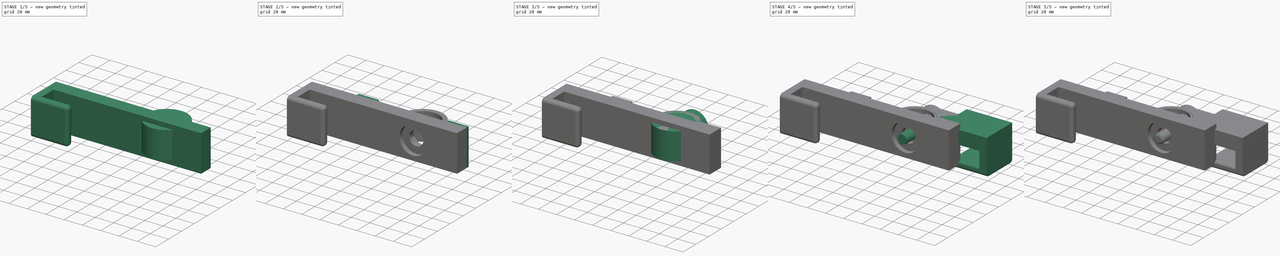
[diagram: build sequence overview — one tinted view per stage of 5, left to right]
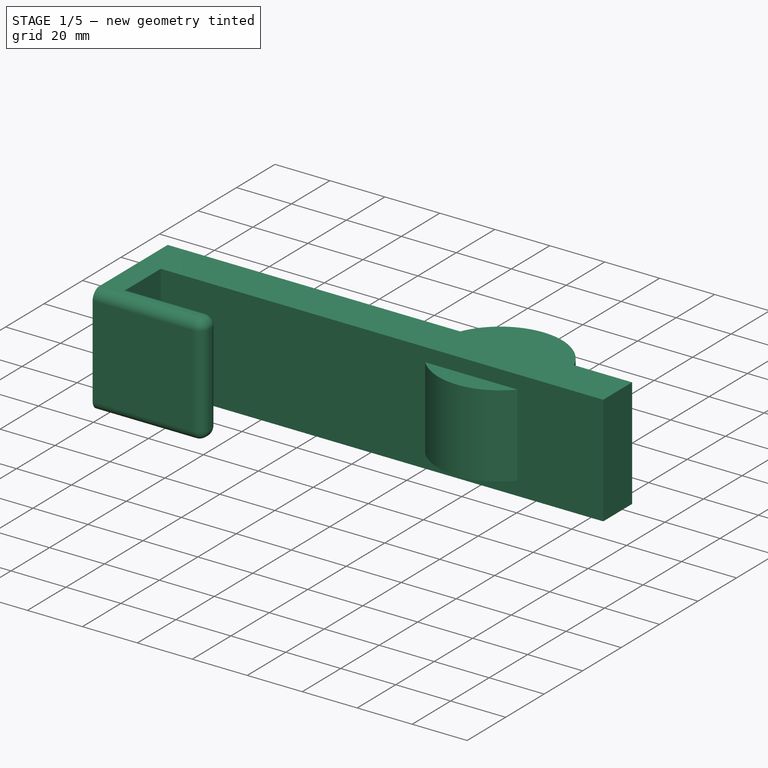
[diagram: stage 1 of 5 — iso view after this stage's code; geometry added in this stage tinted green]
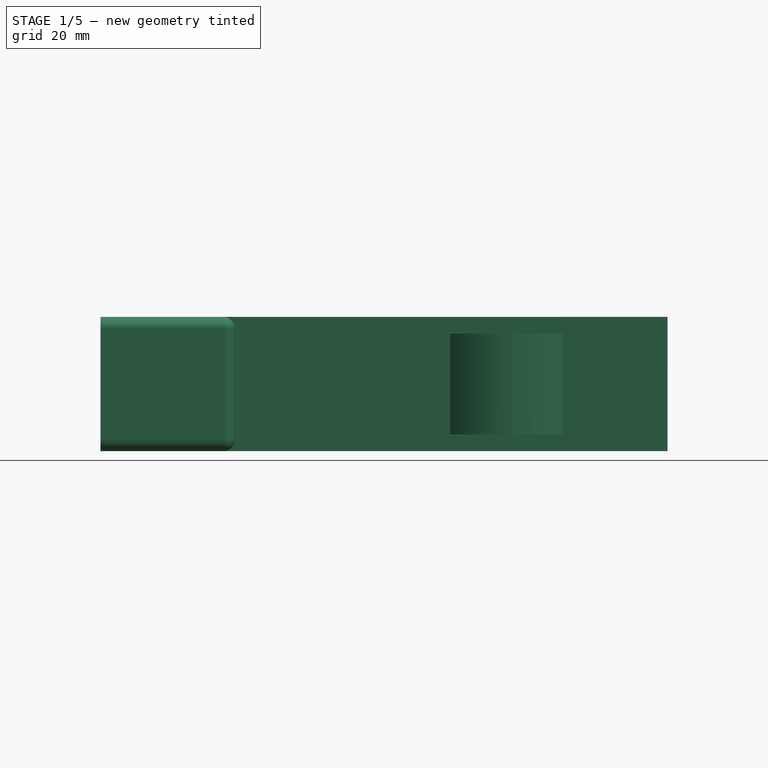
[diagram: stage 1 of 5 — front view after this stage's code; geometry added in this stage tinted green]
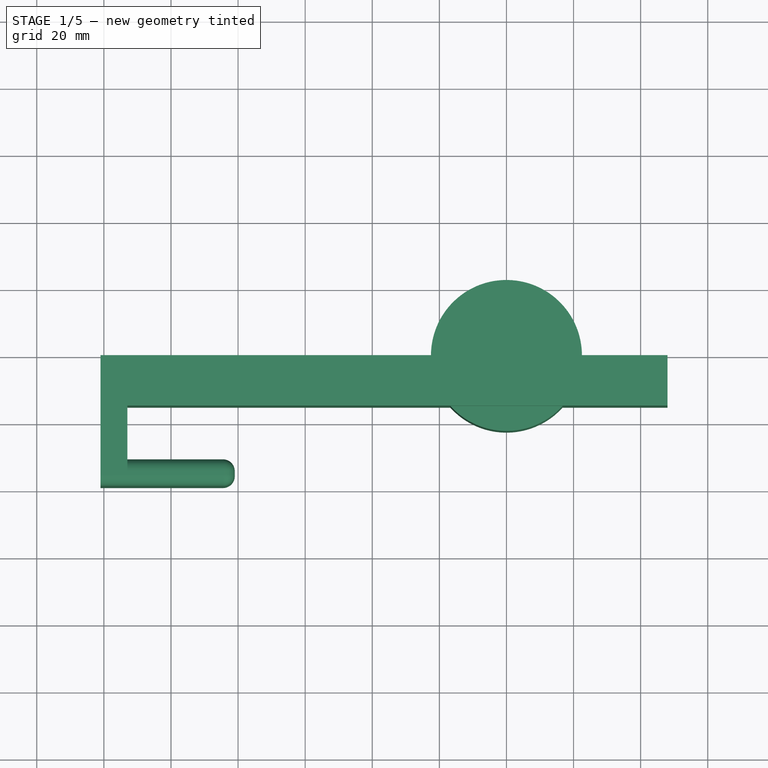
[diagram: stage 1 of 5 — top view after this stage's code; geometry added in this stage tinted green]
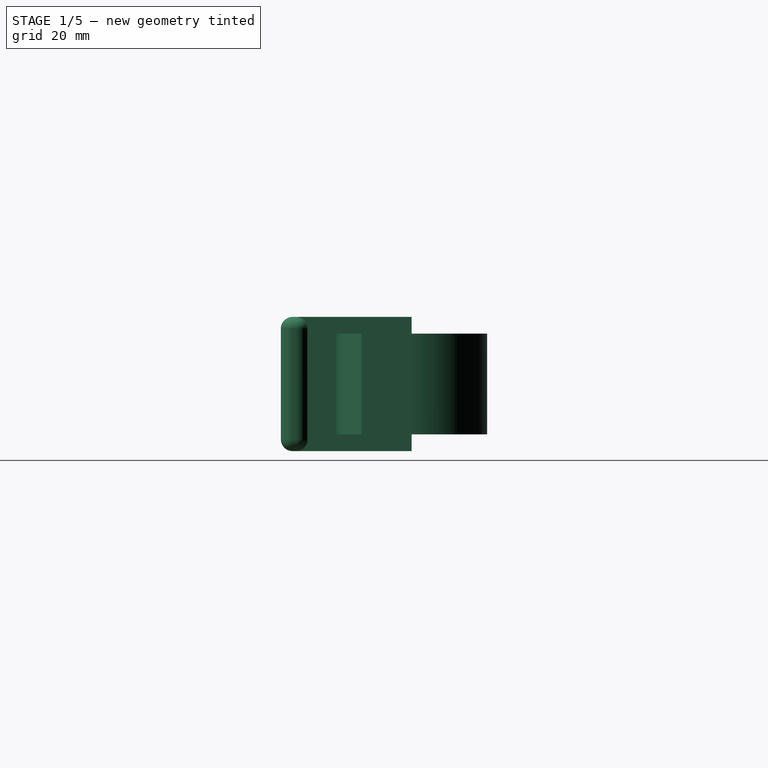
[diagram: stage 1 of 5 — right view after this stage's code; geometry added in this stage tinted green]
FCSTD DOCUMENT  (FreeCAD 0.21R33771 (Git))
Label: laptop-stand-rack
License: All rights reserved
LicenseURL: http://en.wikipedia.org/wiki/All_rights_reserved
objects: Sketcher::SketchObject×57, PartDesign::Pocket×31, PartDesign::Pad×20, PartDesign::Body×10, PartDesign::Fillet×5, PartDesign::SubtractiveHelix×4, App::Part×3, Spreadsheet::Sheet×2, PartDesign::AdditiveHelix×2, PartDesign::Chamfer×2, PartDesign::Boolean×1
note: 196 computed .brp shape members not serialized (recipe doc carries the construction recipe); baked Part::Feature solids carry a one-line shape summary decoded from their .brp

FEATURE [PartDesign::Body] Body004  label="bolt_A"
  Group = -> [Sketch025,Pad011,Sketch026,AdditiveHelix001,Sketch027,Pad012,Sketch028,Pocket014,Sketch029,Chamfer,Pocket032,Fillet]
  Origin = -> Origin005
  Placement = pos=(0,45.5,-0.3) rot=(1,0,0;3.14159rad)
  Tip = -> Fillet
FEATURE [Sketcher::SketchObject] Sketch053
  FullyConstrained = true
  MapMode = 5
  Support = -> [XY_Plane009]
  sketch-geometry (2):
    g0: Circle CenterX=0 CenterY=0 CenterZ=0 NormalX=0 NormalY=0 NormalZ=1 AngleXU=0 Radius=19.8
    g1: Circle CenterX=0 CenterY=0 CenterZ=0 NormalX=0 NormalY=0 NormalZ=1 AngleXU=0 Radius=17.75
  constraints (4):
    c: Coincident(g0,g-1)
    c: Coincident(g1,g0)
    c: Diameter(g1) = 35.5
    c: Diameter(g0) = 39.6
FEATURE [PartDesign::Pad] Pad020
  Direction = (0,0,1)
  Length = 30
  Length2 = 10
  Midplane = true
  Profile = -> Sketch053
  ReferenceAxis = -> Sketch053 [N_Axis]
  Type = 0
  expr: Length = <<support_sheet>>.tube_length
FEATURE [Sketcher::SketchObject] Sketch054
  FullyConstrained = true
  MapMode = 5
  Support = -> [XY_Plane009]
  sketch-geometry (4):
    g0: LineSegment StartX=-20 StartY=1.8 StartZ=0 EndX=20 EndY=1.8 EndZ=0
    g1: LineSegment StartX=20 StartY=1.8 StartZ=0 EndX=20 EndY=-20.2 EndZ=0
    g2: LineSegment StartX=20 StartY=-20.2 StartZ=0 EndX=-20 EndY=-20.2 EndZ=0
    g3: LineSegment StartX=-20 StartY=-20.2 StartZ=0 EndX=-20 EndY=1.8 EndZ=0
  constraints (12):
    c: Coincident(g0,g1)
    c: Coincident(g1,g2)
    c: Coincident(g2,g3)
    c: Coincident(g3,g0)
    c: Horizontal(g0)
    c: Horizontal(g2)
    c: Vertical(g1)
    c: Vertical(g3)
    c: DistanceY(g3,g3) = 22
    c: DistanceX(g0,g0) = 40
    c: DistanceX(g0,g-1) = 20
    c: DistanceY(g-1,g0) = 1.8
FEATURE [PartDesign::Pocket] Pocket033
  BaseFeature = -> Pad020
  Direction = (0,0,-1)
  Length = 5
  Length2 = 5
  Midplane = true
  Profile = -> Sketch054
  ReferenceAxis = -> Sketch054 [N_Axis]
  Type = 1
FEATURE [PartDesign::Fillet] Fillet009
  Base = -> Pocket033 [Edge2,Edge4]
  BaseFeature = -> Pocket033
  Radius = 1
  SupportTransform = false
  UseAllEdges = false
FEATURE [PartDesign::Body] Body002  label="bracket"
  Group = -> [Sketch015,Pad005,Sketch030,Pocket017,Sketch031,Pocket018,Sketch033,Pocket021,Sketch034,Sketch035,Pocket022,Pocket023,Sketch037,Pad014,Sketch038,Pocket024,Sketch055,Sketch056,SubtractiveHelix002,SubtractiveHelix003]
  Origin = -> Origin003
  Placement = pos=(0,-42.1,0) rot=(0,0,1;0rad)
  Tip = -> SubtractiveHelix003
FEATURE [App::Part] Part
  Group = -> [Body004,Body002,Body003,Body,Body006,Body007]
  Origin = -> Origin
FEATURE [Sketcher::SketchObject] Sketch057
  FullyConstrained = true
  MapMode = 5
  Placement = pos=(0,0,0) rot=(1,0,0;1.5708rad)
  Support = -> [XZ_Plane010]
  expr: Constraints[11] = <<bracket_sheet>>.bracket_top_x
  expr: Constraints[8] = <<bracket_sheet>>.bracket_l
  sketch-geometry (4):
    g0: LineSegment StartX=-72 StartY=20 StartZ=0 EndX=48 EndY=20 EndZ=0
    g1: LineSegment StartX=48 StartY=20 StartZ=0 EndX=48 EndY=-20 EndZ=0
    g2: LineSegment StartX=48 StartY=-20 StartZ=0 EndX=-72 EndY=-20 EndZ=0
    g3: LineSegment StartX=-72 StartY=-20 StartZ=0 EndX=-72 EndY=20 EndZ=0
  constraints (12):
    c: Coincident(g0,g1)
    c: Coincident(g1,g2)
    c: Coincident(g2,g3)
    c: Coincident(g3,g0)
    c: Horizontal(g0)
    c: Horizontal(g2)
    c: Vertical(g1)
    c: Vertical(g3)
    c: DistanceX(g0,g0) = 120
    c: DistanceY(g3,g3) = 40
    c: DistanceY(g1,g-1) = 20
    c: DistanceX(g-1,g0) = 48
FEATURE [PartDesign::Pad] Pad021
  Direction = (0,-1,-2e-16)
  Length = 15
  Length2 = 10
  Placement = pos=(0,0,0) rot=(1,0,0;1.5708rad)
  Profile = -> Sketch057
  ReferenceAxis = -> Sketch057 [N_Axis]
  Type = 0
  expr: Length = <<bracket_sheet>>.br_h
FEATURE [Sketcher::SketchObject] Sketch058
  FullyConstrained = true
  MapMode = 5
  Placement = pos=(0,-15,-3.3e-15) rot=(1,0,0;1.5708rad)
  Support = -> [Pad021]
  expr: Constraints[1] = <<bracket_sheet>>.bracket_screw_slot_d
  sketch-geometry (1):
    g0: Circle CenterX=0 CenterY=0 CenterZ=0 NormalX=0 NormalY=0 NormalZ=1 AngleXU=0 Radius=15
  constraints (2):
    c: Coincident(g0,g-1)
    c: Diameter(g0) = 30
FEATURE [PartDesign::Pocket] Pocket034
  BaseFeature = -> Pad021
  Direction = (0,1,2e-16)
  Length = 5
  Length2 = 5
  Placement = pos=(0,0,0) rot=(1,0,0;1.5708rad)
  Profile = -> Sketch058
  ReferenceAxis = -> Sketch058 [N_Axis]
  Type = 0
  expr: Length = <<bracket_sheet>>.bracket_screw_slot_h
FEATURE [Sketcher::SketchObject] Sketch059
  FullyConstrained = true
  MapMode = 5
  Placement = pos=(0,0,0) rot=(1,0,0;1.5708rad)
  Support = -> [XZ_Plane010]
  expr: Constraints[24] = <<support_sheet>>.bolt_oct_d + 0.8
  sketch-geometry (9):
    g0: LineSegment StartX=9.60835 StartY=3.97991 StartZ=0 EndX=3.97991 EndY=9.60835 EndZ=0
    g1: LineSegment StartX=3.97991 StartY=9.60835 StartZ=0 EndX=-3.97991 EndY=9.60835 EndZ=0
    g2: LineSegment StartX=-3.97991 StartY=9.60835 StartZ=0 EndX=-9.60835 EndY=3.97991 EndZ=0
    g3: LineSegment StartX=-9.60835 StartY=3.97991 StartZ=0 EndX=-9.60835 EndY=-3.97991 EndZ=0
    g4: LineSegment StartX=-9.60835 StartY=-3.97991 StartZ=0 EndX=-3.97991 EndY=-9.60835 EndZ=0
    g5: LineSegment StartX=-3.97991 StartY=-9.60835 StartZ=0 EndX=3.97991 EndY=-9.60835 EndZ=0
    g6: LineSegment StartX=3.97991 StartY=-9.60835 StartZ=0 EndX=9.60835 EndY=-3.97991 EndZ=0
    g7: LineSegment StartX=9.60835 StartY=-3.97991 StartZ=0 EndX=9.60835 EndY=3.97991 EndZ=0
    g8: Circle CenterX=0 CenterY=0 CenterZ=0 NormalX=0 NormalY=0 NormalZ=1 AngleXU=0 Radius=10.4
  constraints (20):
    c: Coincident(g0,g1)
    c: Coincident(g1,g2)
    c: Coincident(g2,g3)
    c: Coincident(g3,g4)
    c: Coincident(g4,g5)
    c: Coincident(g5,g6)
    c: Coincident(g6,g7)
    c: Coincident(g7,g0)
    c: Equal(g0, g1-g7) x7
    c: PointOnObject(g0,g8)
    c: PointOnObject(g1,g8)
    c: PointOnObject(g2,g8)
    c: PointOnObject(g3,g8)
    c: PointOnObject(g4,g8)
    c: PointOnObject(g5,g8)
    c: PointOnObject(g6,g8)
    c: PointOnObject(g7,g8)
    c: Horizontal(g5)
    c: Diameter(g8) = 20.8
    c: Coincident(g8,g-1)
FEATURE [PartDesign::Pocket] Pocket035
  BaseFeature = -> Pocket034
  Direction = (0,1,2e-16)
  Length = 5
  Length2 = 5
  Placement = pos=(0,0,0) rot=(1,0,0;1.5708rad)
  Profile = -> Sketch059
  ReferenceAxis = -> Sketch059 [N_Axis]
  Reversed = true
  Type = 0
FEATURE [Sketcher::SketchObject] Sketch060
  FullyConstrained = true
  MapMode = 5
  Placement = pos=(0,0,0) rot=(1,0,0;1.5708rad)
  Support = -> [XZ_Plane010]
  sketch-geometry (1):
    g0: Circle CenterX=0 CenterY=0 CenterZ=0 NormalX=0 NormalY=0 NormalZ=1 AngleXU=0 Radius=7.7
  constraints (2):
    c: Coincident(g0,g-1)
    c: Diameter(g0) = 15.4
FEATURE [PartDesign::Pocket] Pocket036
  BaseFeature = -> Pocket035
  Direction = (0,1,2e-16)
  Length = 5
  Length2 = 5
  Placement = pos=(0,0,0) rot=(1,0,0;1.5708rad)
  Profile = -> Sketch060
  ReferenceAxis = -> Sketch060 [N_Axis]
  Reversed = true
  Type = 1
FEATURE [Sketcher::SketchObject] Sketch067  label="tube_outer002"
  FullyConstrained = true
  MapMode = 5
  Support = -> [XY_Plane011]
  expr: Constraints[1] = <<support_sheet>>.tube_outer_d
  sketch-geometry (1):
    g0: Circle CenterX=0 CenterY=0 CenterZ=0 NormalX=0 NormalY=0 NormalZ=1 AngleXU=0 Radius=22.5
  constraints (2):
    c: Coincident(g0,g-1)
    c: Diameter(g0) = 45
FEATURE [PartDesign::Pad] Pad023
  Direction = (0,0,1)
  Length = 30
  Length2 = 10
  Midplane = true
  Profile = -> Sketch067
  ReferenceAxis = -> Sketch067 [N_Axis]
  Type = 0
  expr: Length = <<support_sheet>>.tube_length
FEATURE [Sketcher::SketchObject] Sketch075  label="scre_slot001"
  ExternalGeometry = -> [Pocket043]
  FullyConstrained = false
  MapMode = 5
  Placement = pos=(0,8,0) rot=(0,0.707107,0.707107;3.14159rad)
  Support = -> [Pocket043]
  expr: Constraints[0] = <<support_sheet>>.tube_screw_slot_screw
  sketch-geometry (2):
    g0: Circle CenterX=28 CenterY=1.8e-15 CenterZ=0 NormalX=0 NormalY=0 NormalZ=1 AngleXU=0 Radius=4.75
    g1: Circle CenterX=-28 CenterY=1.8e-15 CenterZ=0 NormalX=0 NormalY=0 NormalZ=1 AngleXU=0 Radius=4.75
  constraints (2):
    c: Diameter(g0) = 9.5
    c: Equal(g0,g1)
FEATURE [Sketcher::SketchObject] Sketch076
  FullyConstrained = true
  MapMode = 5
  Placement = pos=(0,0,0) rot=(0.57735,0.57735,0.57735;2.0944rad)
  Support = -> [YZ_Plane013]
  expr: Constraints[10] = <<bracket_sheet>>.br_h
  expr: Constraints[8] = <<bracket_sheet>>.br_w
  sketch-geometry (4):
    g0: LineSegment StartX=0 StartY=15 StartZ=0 EndX=40 EndY=15 EndZ=0
    g1: LineSegment StartX=40 StartY=15 StartZ=0 EndX=40 EndY=0 EndZ=0
    g2: LineSegment StartX=40 StartY=0 StartZ=0 EndX=0 EndY=0 EndZ=0
    g3: LineSegment StartX=0 StartY=0 StartZ=0 EndX=0 EndY=15 EndZ=0
  constraints (11):
    c: Coincident(g0,g1)
    c: Coincident(g1,g2)
    c: Coincident(g2,g3)
    c: Coincident(g3,g0)
    c: Horizontal(g0)
    c: Horizontal(g2)
    c: Vertical(g1)
    c: Vertical(g3)
    c: DistanceX(g0,g0) = 40
    c: Coincident(g2,g-1)
    c: DistanceY(g3,g3) = 15
FEATURE [PartDesign::Pad] Pad026
  Direction = (1,-2e-16,3e-16)
  Length = 50
  Length2 = 10
  Placement = pos=(0,0,0) rot=(1,1,1;2.0944rad)
  Profile = -> Sketch076
  ReferenceAxis = -> Sketch076 [N_Axis]
  Type = 0
  expr: Length = <<bracket_sheet>>.extender_l
FEATURE [Sketcher::SketchObject] Sketch078
  ExternalGeometry = -> [Pad026]
  FullyConstrained = true
  MapMode = 5
  Placement = pos=(0,0,0) rot=(1,0,0;1.5708rad)
  Support = -> [XZ_Plane013]
  sketch-geometry (4):
    g0: LineSegment StartX=50 StartY=1.78e-14 StartZ=0 EndX=10 EndY=1.78e-14 EndZ=0
    g1: LineSegment StartX=10 StartY=1.78e-14 StartZ=0 EndX=10 EndY=-24 EndZ=0
    g2: LineSegment StartX=10 StartY=-24 StartZ=0 EndX=50 EndY=-24 EndZ=0
    g3: LineSegment StartX=50 StartY=-24 StartZ=0 EndX=50 EndY=1.78e-14 EndZ=0
  constraints (11):
    c: Coincident(g0,g1)
    c: Coincident(g1,g2)
    c: Coincident(g2,g3)
    c: Coincident(g3,g0)
    c: Horizontal(g0)
    c: Horizontal(g2)
    c: Vertical(g1)
    c: Vertical(g3)
    c: Distance(g3) = 24
    c: Distance(g2) = 40
    c: Coincident(g0,g-3)
FEATURE [PartDesign::Pad] Pad027
  BaseFeature = -> Pad026
  Direction = (0,-1,-2e-16)
  Length = 40
  Length2 = 10
  Placement = pos=(0,0,0) rot=(1,1,1;2.0944rad)
  Profile = -> Sketch078
  ReferenceAxis = -> Sketch078 [N_Axis]
  Reversed = true
  Type = 0
  expr: Length = <<bracket_sheet>>.br_w
FEATURE [Sketcher::SketchObject] Sketch079
  ExternalGeometry = -> [Pad027]
  FullyConstrained = true
  MapMode = 5
  Placement = pos=(0,0,0) rot=(1,0,0;1.5708rad)
  Support = -> [XZ_Plane013]
  sketch-geometry (4):
    g0: LineSegment StartX=10 StartY=1.95e-14 StartZ=0 EndX=42 EndY=1.95e-14 EndZ=0
    g1: LineSegment StartX=42 StartY=1.95e-14 StartZ=0 EndX=42 EndY=-16 EndZ=0
    g2: LineSegment StartX=42 StartY=-16 StartZ=0 EndX=10 EndY=-16 EndZ=0
    g3: LineSegment StartX=10 StartY=-16 StartZ=0 EndX=10 EndY=1.95e-14 EndZ=0
  constraints (11):
    c: Coincident(g0,g1)
    c: Coincident(g1,g2)
    c: Coincident(g2,g3)
    c: Coincident(g3,g0)
    c: Horizontal(g0)
    c: Horizontal(g2)
    c: Vertical(g1)
    c: Vertical(g3)
    c: Distance(g3) = 16
    c: DistanceX(g2,g2) = 32
    c: Coincident(g0,g-4)
FEATURE [PartDesign::Pocket] Pocket046
  BaseFeature = -> Pad027
  Direction = (0,1,2e-16)
  Length = 5
  Length2 = 5
  Placement = pos=(0,0,0) rot=(1,1,1;2.0944rad)
  Profile = -> Sketch079
  ReferenceAxis = -> Sketch079 [N_Axis]
  Type = 1
FEATURE [PartDesign::Body] Body010  label="support_C"
  Group = -> [Sketch067,Sketch069,Sketch072,Sketch073,Sketch074,Sketch075,Pad023,Pocket041,Pad025,Pocket042,Pocket043,Pocket047]
  Origin = -> Origin011
  Placement = pos=(0,0,-197.7) rot=(0,0,1;0rad)
  Tip = -> Pocket047
FEATURE [App::Part] Part002  label="part_spacers"
  Group = -> [Body008]
  Origin = -> Origin014
FEATURE [PartDesign::Fillet] Fillet010
  Base = -> Pocket046 [Edge32,Edge21,Edge20,Edge22,Edge31,Edge26,Edge27,Edge25]
  BaseFeature = -> Pocket046
  Placement = pos=(0,0,0) rot=(1,1,1;2.0944rad)
  Radius = 3.5
  SupportTransform = false
  UseAllEdges = false
FEATURE [PartDesign::Body] Body011  label="extensionB"
  Group = -> [Sketch076,Pad026,Sketch078,Sketch079,Pad027,Pocket046,Fillet010]
  Origin = -> Origin013
  Placement = pos=(-71,-15,-20) rot=(0,0.707107,0.707107;3.14159rad)
  Tip = -> Fillet010
FEATURE [PartDesign::Boolean] Boolean
  BaseFeature = -> Pocket036
  Group = -> [Body011]
  Type = 0
FEATURE [PartDesign::Body] Body009  label="bracket_B"
  Group = -> [Sketch057,Pad021,Sketch058,Pocket034,Sketch059,Pocket035,Sketch060,Pocket036,Boolean]
  Origin = -> Origin010
  Tip = -> Boolean
FEATURE [App::Part] Part001  label="Part_B"
  Group = -> [Body010,Body009]
  Origin = -> Origin012
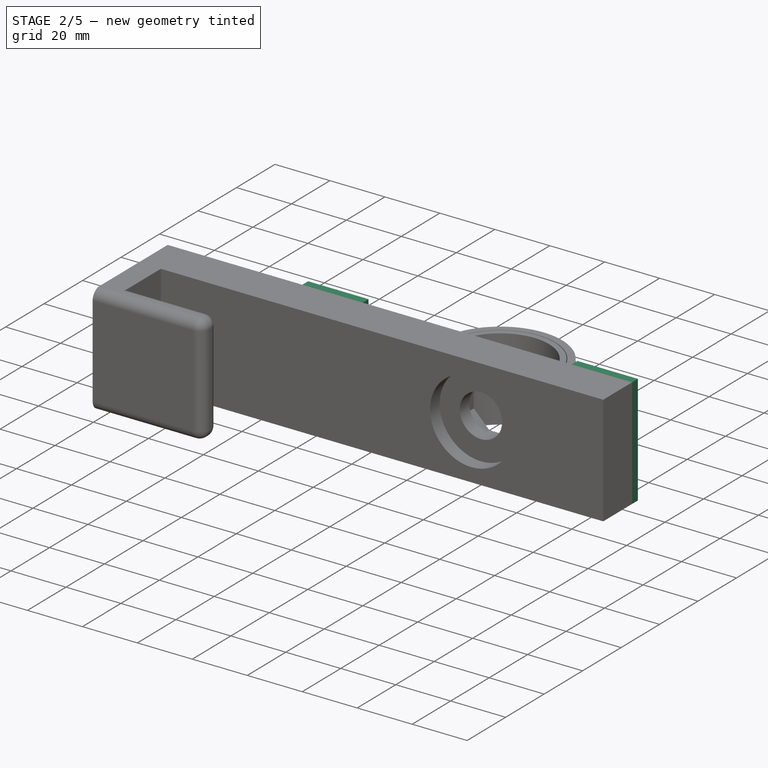
[diagram: stage 2 of 5 — iso view after this stage's code; geometry added in this stage tinted green]
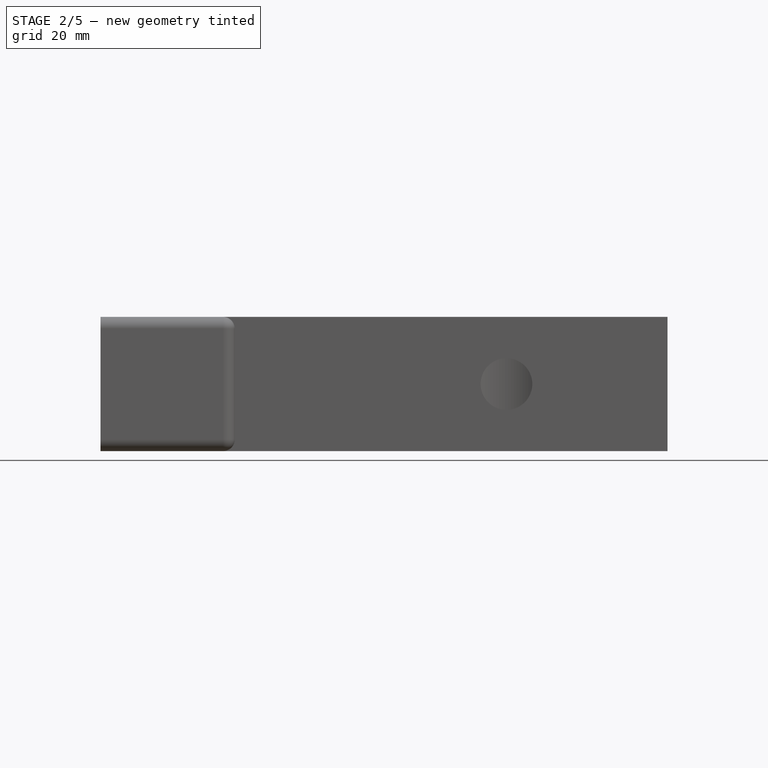
[diagram: stage 2 of 5 — front view after this stage's code; geometry added in this stage tinted green]
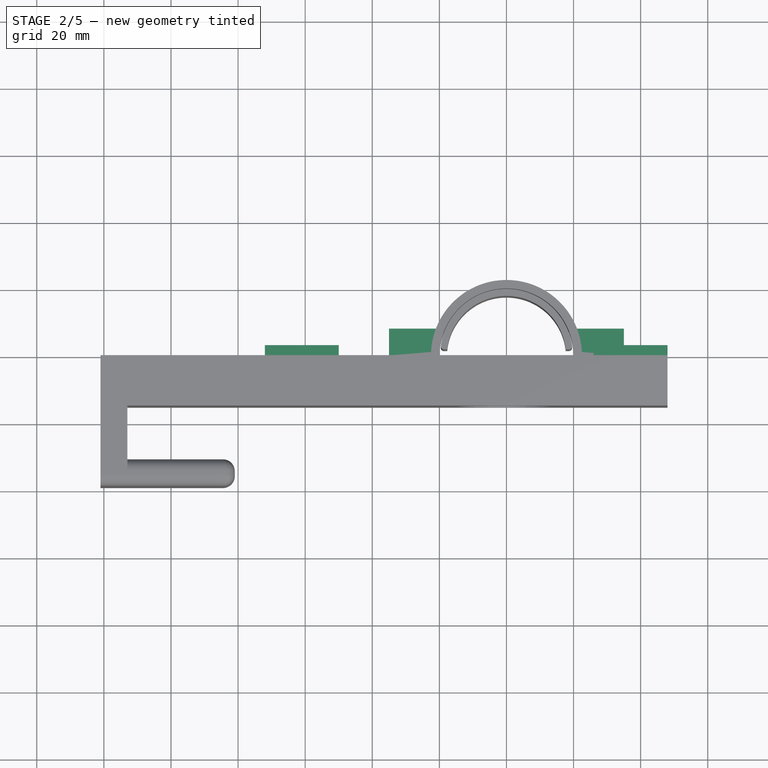
[diagram: stage 2 of 5 — top view after this stage's code; geometry added in this stage tinted green]
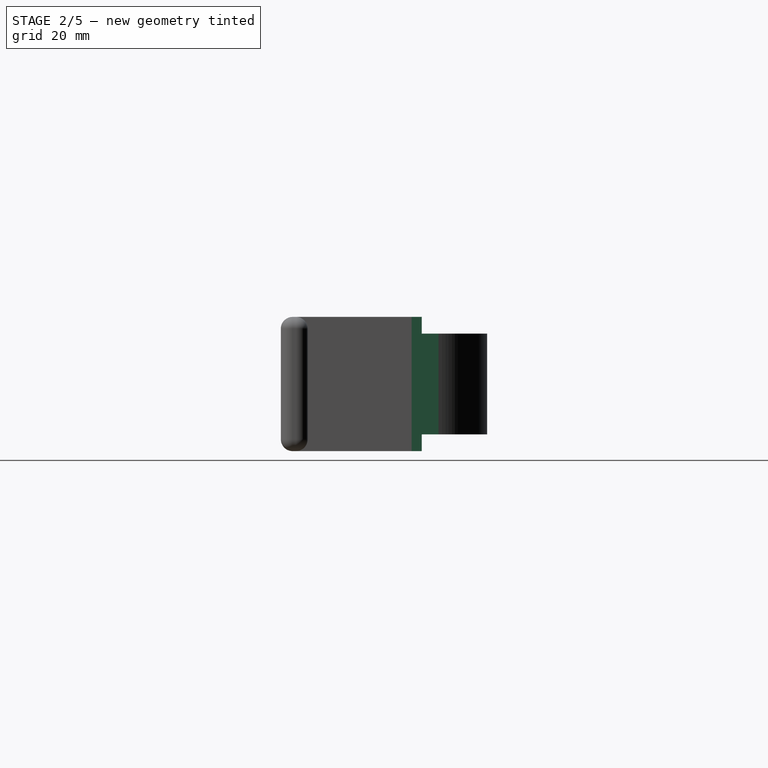
[diagram: stage 2 of 5 — right view after this stage's code; geometry added in this stage tinted green]
FEATURE [Sketcher::SketchObject] Sketch  label="tube_outer"
  FullyConstrained = true
  MapMode = 5
  Support = -> [XY_Plane001]
  expr: Constraints[1] = <<support_sheet>>.tube_outer_d
  sketch-geometry (1):
    g0: Circle CenterX=0 CenterY=0 CenterZ=0 NormalX=0 NormalY=0 NormalZ=1 AngleXU=0 Radius=22.5
  constraints (2):
    c: Coincident(g0,g-1)
    c: Diameter(g0) = 45
FEATURE [Sketcher::SketchObject] Sketch001  label="bolt_fix"
  FullyConstrained = true
  MapMode = 5
  Placement = pos=(0,0,0) rot=(1,0,0;1.5708rad)
  Support = -> [XZ_Plane001]
  expr: Constraints[1] = <<support_sheet>>.bolt_slot
  sketch-geometry (1):
    g0: Circle CenterX=0 CenterY=0 CenterZ=0 NormalX=0 NormalY=0 NormalZ=1 AngleXU=0 Radius=15
  constraints (2):
    c: Coincident(g0,g-1)
    c: Diameter(g0) = 30
FEATURE [Sketcher::SketchObject] Sketch002  label="tube_inner"
  FullyConstrained = true
  MapMode = 5
  Support = -> [XY_Plane001]
  expr: Constraints[1] = <<support_sheet>>.tube_diameter
  sketch-geometry (1):
    g0: Circle CenterX=0 CenterY=0 CenterZ=0 NormalX=0 NormalY=0 NormalZ=1 AngleXU=0 Radius=20
  constraints (2):
    c: Coincident(g0,g-1)
    c: Diameter(g0) = 40
FEATURE [Sketcher::SketchObject] Sketch003  label="bolt_hole"
  FullyConstrained = true
  MapMode = 5
  Placement = pos=(0,35,8e-15) rot=(0,0.707107,0.707107;3.14159rad)
  expr: Constraints[1] = <<support_sheet>>.bolt_case
  sketch-geometry (1):
    g0: Circle CenterX=0 CenterY=0 CenterZ=0 NormalX=0 NormalY=0 NormalZ=1 AngleXU=0 Radius=6
  constraints (2):
    c: Coincident(g0,g-1)
    c: Diameter(g0) = 12
FEATURE [Sketcher::SketchObject] Sketch004  label="thread_maker"
  FullyConstrained = true
  MapMode = 5
  Support = -> [XY_Plane001]
  expr: Constraints[11] = <<support_sheet>>.bolt_height
  expr: Constraints[5] = <<support_sheet>>.thread_space - 0.2
  expr: Constraints[6] = <<support_sheet>>.thread_end + 0.2
  expr: Constraints[7] = <<support_sheet>>.thread_x
  expr: Constraints[9] = <<support_sheet>>.thread_space
  sketch-geometry (4):
    g0: LineSegment StartX=5.8 StartY=31.8 StartZ=0 EndX=5.8 EndY=30 EndZ=0
    g1: LineSegment StartX=5.8 StartY=30 StartZ=0 EndX=7.8 EndY=30.7279 EndZ=0
    g2: LineSegment StartX=7.8 StartY=30.7279 StartZ=0 EndX=7.8 EndY=31.1279 EndZ=0
    g3: LineSegment StartX=7.8 StartY=31.1279 StartZ=0 EndX=5.8 EndY=31.8 EndZ=0
  constraints (12):
    c: Vertical(g0)
    c: Coincident(g0,g1)
    c: Coincident(g1,g2)
    c: Coincident(g2,g3)
    c: Coincident(g3,g0)
    c: DistanceY(g0,g0) = 1.8
    c: DistanceY(g2,g2) = 0.4
    c: DistanceX(g-1,g0) = 5.8
    c: Vertical(g2)
    c: DistanceX(g0,g2) = 2
    c: Angle(g1,g0) = 1.22173
    c: DistanceY(g-1,g0) = 30
FEATURE [Sketcher::SketchObject] Sketch010  label="screw_support"
  FullyConstrained = true
  MapMode = 5
  Support = -> [XY_Plane001]
  expr: Constraints[10] = <<support_sheet>>.tube_screw_slot_y_size
  expr: Constraints[11] = <<support_sheet>>.tube_screw_slot_y
  expr: Constraints[8] = <<support_sheet>>.tube_screw_slot_x_size
  expr: Constraints[9] = <<support_sheet>>.tube_screw_slot_x_pos
  sketch-geometry (4):
    g0: LineSegment StartX=-35 StartY=8 StartZ=0 EndX=35 EndY=8 EndZ=0
    g1: LineSegment StartX=35 StartY=8 StartZ=0 EndX=35 EndY=0 EndZ=0
    g2: LineSegment StartX=35 StartY=0 StartZ=0 EndX=-35 EndY=0 EndZ=0
    g3: LineSegment StartX=-35 StartY=0 StartZ=0 EndX=-35 EndY=8 EndZ=0
  constraints (12):
    c: Coincident(g0,g1)
    c: Coincident(g1,g2)
    c: Coincident(g2,g3)
    c: Coincident(g3,g0)
    c: Horizontal(g0)
    c: Horizontal(g2)
    c: Vertical(g1)
    c: Vertical(g3)
    c: DistanceX(g0,g0) = 70
    c: DistanceX(g-1,g0) = 35
    c: DistanceY(g3,g3) = 8
    c: DistanceY(g2,g-1) = 0
FEATURE [Sketcher::SketchObject] Sketch011  label="cut_half"
  FullyConstrained = true
  MapMode = 5
  Support = -> [XY_Plane001]
  expr: Constraints[10] = <<support_sheet>>.tube_cut_hold_x / 2
  expr: Constraints[11] = <<support_sheet>>.tube_cut_hold_x / 2
  expr: Constraints[8] = <<support_sheet>>.tube_cut_hold_x
  expr: Constraints[9] = <<support_sheet>>.tube_cut_hold_x / 2
  sketch-geometry (4):
    g0: LineSegment StartX=-22.5 StartY=0 StartZ=0 EndX=22.5 EndY=0 EndZ=0
    g1: LineSegment StartX=22.5 StartY=0 StartZ=0 EndX=22.5 EndY=-22.5 EndZ=0
    g2: LineSegment StartX=22.5 StartY=-22.5 StartZ=0 EndX=-22.5 EndY=-22.5 EndZ=0
    g3: LineSegment StartX=-22.5 StartY=-22.5 StartZ=0 EndX=-22.5 EndY=0 EndZ=0
  constraints (12):
    c: Coincident(g0,g1)
    c: Coincident(g1,g2)
    c: Coincident(g2,g3)
    c: Coincident(g3,g0)
    c: Horizontal(g0)
    c: Horizontal(g2)
    c: Vertical(g1)
    c: Vertical(g3)
    c: DistanceX(g0,g0) = 45
    c: DistanceX(g-1,g0) = 22.5
    c: DistanceY(g1,g1) = 22.5
    c: DistanceY(g1,g-1) = 22.5
FEATURE [Sketcher::SketchObject] Sketch012  label="screw_hole"
  FullyConstrained = true
  MapMode = 5
  Placement = pos=(0,0,0) rot=(1,0,0;1.5708rad)
  Support = -> [XZ_Plane001]
  expr: Constraints[1] = <<support_sheet>>.tube_screw_hole
  expr: Constraints[2] = <<support_sheet>>.tube_screw_slot_x_size / 2 - 7
  expr: Constraints[5] = <<support_sheet>>.tube_screw_slot_x_size / 2 - 7
  sketch-geometry (2):
    g0: Circle CenterX=28 CenterY=0 CenterZ=0 NormalX=0 NormalY=0 NormalZ=1 AngleXU=0 Radius=3.25
    g1: Circle CenterX=-28 CenterY=0 CenterZ=0 NormalX=0 NormalY=0 NormalZ=1 AngleXU=0 Radius=3.25
  constraints (6):
    c: PointOnObject(g0,g-1)
    c: Diameter(g0) = 6.5
    c: DistanceX(g-1,g0) = 28
    c: PointOnObject(g1,g-1)
    c: Equal(g0,g1)
    c: DistanceX(g1,g-1) = 28
FEATURE [Sketcher::SketchObject] Sketch015
  FullyConstrained = true
  MapMode = 5
  Placement = pos=(0,0,0) rot=(1,0,0;1.5708rad)
  Support = -> [XZ_Plane003]
  expr: Constraints[11] = <<bracket_sheet>>.bracket_top_x
  expr: Constraints[8] = <<bracket_sheet>>.bracket_l
  sketch-geometry (4):
    g0: LineSegment StartX=-72 StartY=20 StartZ=0 EndX=48 EndY=20 EndZ=0
    g1: LineSegment StartX=48 StartY=20 StartZ=0 EndX=48 EndY=-20 EndZ=0
    g2: LineSegment StartX=48 StartY=-20 StartZ=0 EndX=-72 EndY=-20 EndZ=0
    g3: LineSegment StartX=-72 StartY=-20 StartZ=0 EndX=-72 EndY=20 EndZ=0
  constraints (12):
    c: Coincident(g0,g1)
    c: Coincident(g1,g2)
    c: Coincident(g2,g3)
    c: Coincident(g3,g0)
    c: Horizontal(g0)
    c: Horizontal(g2)
    c: Vertical(g1)
    c: Vertical(g3)
    c: DistanceX(g0,g0) = 120
    c: DistanceY(g3,g3) = 40
    c: DistanceY(g1,g-1) = 20
    c: DistanceX(g-1,g0) = 48
FEATURE [PartDesign::Pad] Pad005
  Direction = (0,-1,-2e-16)
  Length = 15
  Length2 = 10
  Placement = pos=(0,0,0) rot=(1,0,0;1.5708rad)
  Profile = -> Sketch015
  ReferenceAxis = -> Sketch015 [N_Axis]
  Type = 0
  expr: Length = <<bracket_sheet>>.br_h
FEATURE [Sketcher::SketchObject] Sketch030
  FullyConstrained = true
  MapMode = 5
  Placement = pos=(0,-15,-3.3e-15) rot=(1,0,0;1.5708rad)
  Support = -> [Pad005]
  expr: Constraints[1] = <<bracket_sheet>>.bracket_screw_slot_d
  sketch-geometry (1):
    g0: Circle CenterX=0 CenterY=0 CenterZ=0 NormalX=0 NormalY=0 NormalZ=1 AngleXU=0 Radius=15
  constraints (2):
    c: Coincident(g0,g-1)
    c: Diameter(g0) = 30
FEATURE [PartDesign::Pocket] Pocket017
  BaseFeature = -> Pad005
  Direction = (0,1,2e-16)
  Length = 5
  Length2 = 5
  Placement = pos=(0,0,0) rot=(1,0,0;1.5708rad)
  Profile = -> Sketch030
  ReferenceAxis = -> Sketch030 [N_Axis]
  Type = 0
  expr: Length = <<bracket_sheet>>.bracket_screw_slot_h
FEATURE [Sketcher::SketchObject] Sketch031
  FullyConstrained = true
  MapMode = 5
  Placement = pos=(0,0,0) rot=(1,0,0;1.5708rad)
  Support = -> [XZ_Plane003]
  expr: Constraints[24] = <<support_sheet>>.bolt_oct_d + 0.8
  sketch-geometry (9):
    g0: LineSegment StartX=9.60835 StartY=3.97991 StartZ=0 EndX=3.97991 EndY=9.60835 EndZ=0
    g1: LineSegment StartX=3.97991 StartY=9.60835 StartZ=0 EndX=-3.97991 EndY=9.60835 EndZ=0
    g2: LineSegment StartX=-3.97991 StartY=9.60835 StartZ=0 EndX=-9.60835 EndY=3.97991 EndZ=0
    g3: LineSegment StartX=-9.60835 StartY=3.97991 StartZ=0 EndX=-9.60835 EndY=-3.97991 EndZ=0
    g4: LineSegment StartX=-9.60835 StartY=-3.97991 StartZ=0 EndX=-3.97991 EndY=-9.60835 EndZ=0
    g5: LineSegment StartX=-3.97991 StartY=-9.60835 StartZ=0 EndX=3.97991 EndY=-9.60835 EndZ=0
    g6: LineSegment StartX=3.97991 StartY=-9.60835 StartZ=0 EndX=9.60835 EndY=-3.97991 EndZ=0
    g7: LineSegment StartX=9.60835 StartY=-3.97991 StartZ=0 EndX=9.60835 EndY=3.97991 EndZ=0
    g8: Circle CenterX=0 CenterY=0 CenterZ=0 NormalX=0 NormalY=0 NormalZ=1 AngleXU=0 Radius=10.4
  constraints (20):
    c: Coincident(g0,g1)
    c: Coincident(g1,g2)
    c: Coincident(g2,g3)
    c: Coincident(g3,g4)
    c: Coincident(g4,g5)
    c: Coincident(g5,g6)
    c: Coincident(g6,g7)
    c: Coincident(g7,g0)
    c: Equal(g0, g1-g7) x7
    c: PointOnObject(g0,g8)
    c: PointOnObject(g1,g8)
    c: PointOnObject(g2,g8)
    c: PointOnObject(g3,g8)
    c: PointOnObject(g4,g8)
    c: PointOnObject(g5,g8)
    c: PointOnObject(g6,g8)
    c: PointOnObject(g7,g8)
    c: Horizontal(g5)
    c: Diameter(g8) = 20.8
    c: Coincident(g8,g-1)
FEATURE [PartDesign::Pocket] Pocket018
  BaseFeature = -> Pocket017
  Direction = (0,1,2e-16)
  Length = 5
  Length2 = 5
  Placement = pos=(0,0,0) rot=(1,0,0;1.5708rad)
  Profile = -> Sketch031
  ReferenceAxis = -> Sketch031 [N_Axis]
  Reversed = true
  Type = 0
FEATURE [PartDesign::Body] Body003  label="support_B"
  Group = -> [Sketch016,Sketch017,Sketch018,Sketch019,Sketch020,Sketch021,Sketch022,Sketch023,Pad008,Pad009,Pocket010,Pad010,Pocket011,Pocket012,Sketch032,Pocket019,Pocket020,SubtractiveHelix001]
  Origin = -> Origin004
  Placement = pos=(0,-27.8,-5e-15) rot=(1,0,0;3.14159rad)
  Tip = -> SubtractiveHelix001
FEATURE [Sketcher::SketchObject] Sketch033
  FullyConstrained = true
  MapMode = 5
  Placement = pos=(0,0,0) rot=(1,0,0;1.5708rad)
  Support = -> [XZ_Plane003]
  sketch-geometry (1):
    g0: Circle CenterX=0 CenterY=0 CenterZ=0 NormalX=0 NormalY=0 NormalZ=1 AngleXU=0 Radius=7.7
  constraints (2):
    c: Coincident(g0,g-1)
    c: Diameter(g0) = 15.4
FEATURE [PartDesign::Pocket] Pocket021
  BaseFeature = -> Pocket018
  Direction = (0,1,2e-16)
  Length = 5
  Length2 = 5
  Placement = pos=(0,0,0) rot=(1,0,0;1.5708rad)
  Profile = -> Sketch033
  ReferenceAxis = -> Sketch033 [N_Axis]
  Reversed = true
  Type = 1
FEATURE [Spreadsheet::Sheet] Spreadsheet003  label="bracket_sheet"
  cells = A2='Total lenght closed; B2=220; A3='bracket_l; B3(bracket_l)==B2 - 2 * B4; D3='bracket_top_x; E3(bracket_top_x)==B3 * 0.4; A4='extender_l; B4(extender_l)=50; D4='bracket_bottom_x; E4(bracket_bottom_x)==B3 * 0.6; A5='br_w; B5(br_w)=40; D5='bracket_screw_slot_h; E5(bracket_screw_slot_h)=5; A6='br_h; B6(br_h)=15; D6='bracket_screw_slot_d; E6(bracket_screw_slot_d)=30; A7='br_wall; B7(br_wall)=2.5; D7='extender_slot_case; E7(extender_slot_case)==E3 - 18; A8='slot_w; B8(slot_w)==B5 - 2 * B7; C8='calc; D8='brb_l; E8==B3 + B4; A9='slot_h; B9(slot_h)==B6 - 2 * B7; C9='calc; A10='tolerance; B10(tolerance)=1; C10=0; A11='inner_br_w; B11(inner_br_w)==B8 - B10; C11='calc; A12='inner_br_h; B12(inner_br_h)==B9 - B10; C12='calc; A13='inner_br_l; B13(inner_br_l)==B3 - B10; A14='back_fix_w; B14(back_fix_w)=40; A15='back_fix_h; B15(back_fix_h)=22; A16='back_fix_d; B16(back_fix_d)=10; A17='back_fix_pad; B17(back_fix_pad)=3; A18='back_fix_screw_l; B18(back_fix_screw_l)=20; A19='back_fix_screw_d; B19(back_fix_screw_d)=10; A20='back_fix_thread_w; B20(back_fix_thread_w)=1.5; A21='back_fix_thread_maker_p; B21(back_fix_thread_maker_p)==B19 / 2 - 0.2; A22='back_fix_tolerance; B22(back_fix_tolerance)=0.4; A23='back_fix_hole_top_x_pos; B23(back_fix_hole_top_x_pos)==70 - B15 / 2; A24='back_fix_hole_bot_x_pos; B24(back_fix_hole_bot_x_pos)==130 - B15 / 2
FEATURE [Sketcher::SketchObject] Sketch034  label="slot_bottom"
  FullyConstrained = true
  MapMode = 5
  Placement = pos=(-72,0,0) rot=(0.707107,0,-0.707107;3.14159rad)
  Support = -> [Pocket021]
  expr: Constraints[10] = <<bracket_sheet>>.slot_w
  expr: Constraints[11] = <<bracket_sheet>>.slot_w / 2
  expr: Constraints[12] = <<bracket_sheet>>.slot_h / 2
  expr: Constraints[13] = <<bracket_sheet>>.slot_h / 2
  expr: Constraints[8] = <<bracket_sheet>>.br_wall
  expr: Constraints[9] = <<bracket_sheet>>.slot_h
  sketch-geometry (6):
    g0: LineSegment StartX=-17.5 StartY=7.5 StartZ=0 EndX=-12.5 EndY=12.5 EndZ=0
    g1: LineSegment StartX=-12.5 StartY=12.5 StartZ=0 EndX=12.5 EndY=12.5 EndZ=0
    g2: LineSegment StartX=12.5 StartY=12.5 StartZ=0 EndX=17.5 EndY=7.5 EndZ=0
    g3: LineSegment StartX=17.5 StartY=7.5 StartZ=0 EndX=12.5 EndY=2.5 EndZ=0
    g4: LineSegment StartX=12.5 StartY=2.5 StartZ=0 EndX=-12.5 EndY=2.5 EndZ=0
    g5: LineSegment StartX=-12.5 StartY=2.5 StartZ=0 EndX=-17.5 EndY=7.5 EndZ=0
  constraints (18):
    c: Coincident(g0,g1)
    c: Horizontal(g1)
    c: Coincident(g1,g2)
    c: Coincident(g2,g3)
    c: Coincident(g3,g4)
    c: Horizontal(g4)
    c: Coincident(g4,g5)
    c: Coincident(g5,g0)
    c: DistanceY(g-1,g4) = 2.5
    c: DistanceY(g4,g0) = 10
    c: DistanceX(g0,g2) = 35
    c: DistanceX(g0,g-1) = 17.5
    c: DistanceY(g4,g0) = 5
    c: DistanceY(g3,g2) = 5
    c: Angle(g1,g2) = 2.35619
    c: Angle(g0,g1) = 2.35619
    c: Angle(g4,g5) = 2.35619
    c: Angle(g3,g4) = 2.35619
FEATURE [PartDesign::Pocket] Pocket022
  BaseFeature = -> Pocket021
  Direction = (1,0,2e-16)
  Length = 30
  Length2 = 5
  Placement = pos=(0,0,0) rot=(1,0,0;1.5708rad)
  Profile = -> Sketch034
  ReferenceAxis = -> Sketch034 [N_Axis]
  Type = 0
  expr: Length = <<bracket_sheet>>.extender_slot_case
FEATURE [Sketcher::SketchObject] Sketch035  label="slot_top"
  FullyConstrained = true
  MapMode = 5
  Placement = pos=(48,0,0) rot=(0.707107,0,0.707107;3.14159rad)
  Support = -> [Pocket022]
  expr: Constraints[10] = <<bracket_sheet>>.slot_h / 2
  expr: Constraints[11] = <<bracket_sheet>>.slot_h / 2
  expr: Constraints[12] = <<bracket_sheet>>.slot_w
  expr: Constraints[13] = <<bracket_sheet>>.slot_w / 2
  expr: Constraints[7] = <<bracket_sheet>>.br_wall
  expr: Constraints[8] = <<bracket_sheet>>.slot_h
  sketch-geometry (6):
    g0: LineSegment StartX=-17.5 StartY=7.5 StartZ=0 EndX=-12.5 EndY=12.5 EndZ=0
    g1: LineSegment StartX=-12.5 StartY=12.5 StartZ=0 EndX=12.5 EndY=12.5 EndZ=0
    g2: LineSegment StartX=12.5 StartY=12.5 StartZ=0 EndX=17.5 EndY=7.5 EndZ=0
    g3: LineSegment StartX=17.5 StartY=7.5 StartZ=0 EndX=12.5 EndY=2.5 EndZ=0
    g4: LineSegment StartX=12.5 StartY=2.5 StartZ=0 EndX=-12.5 EndY=2.5 EndZ=0
    g5: LineSegment StartX=-12.5 StartY=2.5 StartZ=0 EndX=-17.5 EndY=7.5 EndZ=0
  constraints (18):
    c: Coincident(g0,g1)
    c: Coincident(g1,g2)
    c: Coincident(g2,g3)
    c: Coincident(g3,g4)
    c: Horizontal(g4)
    c: Coincident(g4,g5)
    c: Coincident(g5,g0)
    c: DistanceY(g-1,g4) = 2.5
    c: DistanceY(g4,g0) = 10
    c: Horizontal(g1)
    c: DistanceY(g4,g0) = 5
    c: DistanceY(g3,g2) = 5
    c: DistanceX(g0,g2) = 35
    c: DistanceX(g0,g-1) = 17.5
    c: Angle(g0,g1) = 2.35619
    c: Angle(g1,g2) = 2.35619
    c: Angle(g3,g4) = 2.35619
    c: Angle(g4,g5) = 2.35619
FEATURE [PartDesign::Pocket] Pocket023
  BaseFeature = -> Pocket022
  Direction = (-1,0,2e-16)
  Length = 30
  Length2 = 5
  Placement = pos=(0,0,0) rot=(1,0,0;1.5708rad)
  Profile = -> Sketch035
  ReferenceAxis = -> Sketch035 [N_Axis]
  Type = 0
  expr: Length = <<bracket_sheet>>.extender_slot_case
FEATURE [Sketcher::SketchObject] Sketch037  label="back_fix_pad"
  AttachmentOffset = pos=(0,22,0) rot=(0,0,1;0rad)
  ExternalGeometry = -> [Pocket023]
  FullyConstrained = true
  MapMode = 5
  Placement = pos=(0,-4.9e-15,22) rot=(1,0,0;1.5708rad)
  Support = -> [XZ_Plane003]
  expr: Constraints[17] = <<bracket_sheet>>.back_fix_h
  expr: Constraints[19] = <<bracket_sheet>>.back_fix_w
  expr: Constraints[20] = <<bracket_sheet>>.back_fix_w
  expr: Constraints[21] = <<bracket_sheet>>.back_fix_h
  sketch-geometry (8):
    g0: LineSegment StartX=-72 StartY=-2 StartZ=0 EndX=-50 EndY=-2 EndZ=0
    g1: LineSegment StartX=-50 StartY=-2 StartZ=0 EndX=-50 EndY=-42 EndZ=0
    g2: LineSegment StartX=-50 StartY=-42 StartZ=0 EndX=-72 EndY=-42 EndZ=0
    g3: LineSegment StartX=-72 StartY=-42 StartZ=0 EndX=-72 EndY=-2 EndZ=0
    g4: LineSegment StartX=48 StartY=-2 StartZ=0 EndX=26 EndY=-2 EndZ=0
    g5: LineSegment StartX=26 StartY=-2 StartZ=0 EndX=26 EndY=-42 EndZ=0
    g6: LineSegment StartX=26 StartY=-42 StartZ=0 EndX=48 EndY=-42 EndZ=0
    g7: LineSegment StartX=48 StartY=-42 StartZ=0 EndX=48 EndY=-2 EndZ=0
  constraints (22):
    c: Coincident(g0,g1)
    c: Coincident(g1,g2)
    c: Coincident(g2,g3)
    c: Coincident(g3,g0)
    c: Horizontal(g0)
    c: Horizontal(g2)
    c: Vertical(g1)
    c: Vertical(g3)
    c: Coincident(g4,g5)
    c: Coincident(g5,g6)
    c: Coincident(g6,g7)
    c: Coincident(g7,g4)
    c: Horizontal(g4)
    c: Horizontal(g6)
    c: Vertical(g5)
    c: Vertical(g7)
    c: Coincident(g4,g-4)
    c: DistanceX(g0,g0) = 22
    c: Coincident(g0,g-3)
    c: DistanceY(g3,g3) = 40
    c: DistanceY(g5,g5) = 40
    c: DistanceX(g4,g4) = 22
FEATURE [PartDesign::Pad] Pad014
  BaseFeature = -> Pocket023
  Direction = (0,-1,-2e-16)
  Length = 3
  Length2 = 10
  Placement = pos=(0,0,0) rot=(1,0,0;1.5708rad)
  Profile = -> Sketch037
  ReferenceAxis = -> Sketch037 [N_Axis]
  Reversed = true
  Type = 0
  expr: Length = <<bracket_sheet>>.back_fix_pad
FEATURE [Sketcher::SketchObject] Sketch038  label="back_fix_holes"
  ExternalGeometry = -> [Pad014]
  FullyConstrained = true
  MapMode = 5
  Placement = pos=(0,0,0) rot=(1,0,0;1.5708rad)
  Support = -> [XZ_Plane003]
  expr: Constraints[2] = <<support_sheet>>.bolt_case
  expr: Constraints[3] = <<support_sheet>>.bolt_case
  expr: Constraints[4] = <<bracket_sheet>>.back_fix_h / 2
  expr: Constraints[5] = <<bracket_sheet>>.bracket_bottom_x - <<bracket_sheet>>.back_fix_h / 2
  expr: Constraints[6] = <<bracket_sheet>>.bracket_top_x - <<bracket_sheet>>.back_fix_h / 2
  sketch-geometry (2):
    g0: Circle CenterX=-61 CenterY=0 CenterZ=0 NormalX=0 NormalY=0 NormalZ=1 AngleXU=0 Radius=6
    g1: Circle CenterX=37 CenterY=0 CenterZ=0 NormalX=0 NormalY=0 NormalZ=1 AngleXU=0 Radius=6
  constraints (7):
    c: PointOnObject(g0,g-1)
    c: PointOnObject(g1,g-1)
    c: Diameter(g0) = 12
    c: Diameter(g1) = 12
    c: DistanceX(g1,g-4) = 11
    c: DistanceX(g0,g-1) = 61
    c: DistanceX(g-1,g1) = 37
FEATURE [PartDesign::Pocket] Pocket024
  BaseFeature = -> Pad014
  Direction = (0,1,2e-16)
  Length = 10
  Length2 = 5
  Midplane = true
  Placement = pos=(0,0,0) rot=(1,0,0;1.5708rad)
  Profile = -> Sketch038
  ReferenceAxis = -> Sketch038 [N_Axis]
  Type = 0
FEATURE [Sketcher::SketchObject] Sketch069  label="tube_inner002"
  FullyConstrained = true
  MapMode = 5
  Support = -> [XY_Plane011]
  expr: Constraints[1] = <<support_sheet>>.tube_diameter
  sketch-geometry (1):
    g0: Circle CenterX=0 CenterY=0 CenterZ=0 NormalX=0 NormalY=0 NormalZ=1 AngleXU=0 Radius=20
  constraints (2):
    c: Coincident(g0,g-1)
    c: Diameter(g0) = 40
FEATURE [Sketcher::SketchObject] Sketch072  label="screw_support002"
  FullyConstrained = true
  MapMode = 5
  Support = -> [XY_Plane011]
  expr: Constraints[10] = <<support_sheet>>.tube_screw_slot_y_size
  expr: Constraints[11] = <<support_sheet>>.tube_screw_slot_y
  expr: Constraints[8] = <<support_sheet>>.tube_screw_slot_x_size
  expr: Constraints[9] = <<support_sheet>>.tube_screw_slot_x_pos
  sketch-geometry (4):
    g0: LineSegment StartX=-35 StartY=8 StartZ=0 EndX=35 EndY=8 EndZ=0
    g1: LineSegment StartX=35 StartY=8 StartZ=0 EndX=35 EndY=0 EndZ=0
    g2: LineSegment StartX=35 StartY=0 StartZ=0 EndX=-35 EndY=0 EndZ=0
    g3: LineSegment StartX=-35 StartY=0 StartZ=0 EndX=-35 EndY=8 EndZ=0
  constraints (12):
    c: Coincident(g0,g1)
    c: Coincident(g1,g2)
    c: Coincident(g2,g3)
    c: Coincident(g3,g0)
    c: Horizontal(g0)
    c: Horizontal(g2)
    c: Vertical(g1)
    c: Vertical(g3)
    c: DistanceX(g0,g0) = 70
    c: DistanceX(g-1,g0) = 35
    c: DistanceY(g3,g3) = 8
    c: DistanceY(g2,g-1) = 0
FEATURE [Sketcher::SketchObject] Sketch073  label="cut_half002"
  FullyConstrained = true
  MapMode = 5
  Support = -> [XY_Plane011]
  expr: Constraints[10] = <<support_sheet>>.tube_cut_hold_x / 2
  expr: Constraints[11] = <<support_sheet>>.tube_cut_hold_x / 2
  expr: Constraints[8] = <<support_sheet>>.tube_cut_hold_x
  expr: Constraints[9] = <<support_sheet>>.tube_cut_hold_x / 2
  sketch-geometry (4):
    g0: LineSegment StartX=-22.5 StartY=0 StartZ=0 EndX=22.5 EndY=0 EndZ=0
    g1: LineSegment StartX=22.5 StartY=0 StartZ=0 EndX=22.5 EndY=-22.5 EndZ=0
    g2: LineSegment StartX=22.5 StartY=-22.5 StartZ=0 EndX=-22.5 EndY=-22.5 EndZ=0
    g3: LineSegment StartX=-22.5 StartY=-22.5 StartZ=0 EndX=-22.5 EndY=0 EndZ=0
  constraints (12):
    c: Coincident(g0,g1)
    c: Coincident(g1,g2)
    c: Coincident(g2,g3)
    c: Coincident(g3,g0)
    c: Horizontal(g0)
    c: Horizontal(g2)
    c: Vertical(g1)
    c: Vertical(g3)
    c: DistanceX(g0,g0) = 45
    c: DistanceX(g-1,g0) = 22.5
    c: DistanceY(g1,g1) = 22.5
    c: DistanceY(g1,g-1) = 22.5
FEATURE [PartDesign::Pocket] Pocket041
  BaseFeature = -> Pad023
  Direction = (0,0,-1)
  Length = 5
  Length2 = 5
  Midplane = true
  Profile = -> Sketch073
  ReferenceAxis = -> Sketch073 [N_Axis]
  Type = 1
FEATURE [PartDesign::Pad] Pad025
  BaseFeature = -> Pocket041
  Direction = (0,0,1)
  Length = 30
  Length2 = 10
  Midplane = true
  Profile = -> Sketch072
  ReferenceAxis = -> Sketch072 [N_Axis]
  Type = 0
  expr: Length = <<support_sheet>>.tube_length
FEATURE [PartDesign::Pocket] Pocket042
  BaseFeature = -> Pad025
  Direction = (0,0,-1)
  Length = 5
  Length2 = 5
  Midplane = true
  Profile = -> Sketch069
  ReferenceAxis = -> Sketch069 [N_Axis]
  Type = 1
FEATURE [Sketcher::SketchObject] Sketch074  label="screw_hole002"
  FullyConstrained = true
  MapMode = 5
  Placement = pos=(0,0,0) rot=(1,0,0;1.5708rad)
  Support = -> [XZ_Plane011]
  expr: Constraints[1] = <<support_sheet>>.tube_screw_hole
  expr: Constraints[2] = <<support_sheet>>.tube_screw_slot_x_size / 2 - 7
  expr: Constraints[5] = <<support_sheet>>.tube_screw_slot_x_size / 2 - 7
  sketch-geometry (2):
    g0: Circle CenterX=28 CenterY=0 CenterZ=0 NormalX=0 NormalY=0 NormalZ=1 AngleXU=0 Radius=3.25
    g1: Circle CenterX=-28 CenterY=0 CenterZ=0 NormalX=0 NormalY=0 NormalZ=1 AngleXU=0 Radius=3.25
  constraints (6):
    c: PointOnObject(g0,g-1)
    c: Diameter(g0) = 6.5
    c: DistanceX(g-1,g0) = 28
    c: PointOnObject(g1,g-1)
    c: Equal(g0,g1)
    c: DistanceX(g1,g-1) = 28
FEATURE [PartDesign::Pocket] Pocket043
  BaseFeature = -> Pocket042
  Direction = (0,1,2e-16)
  Length = 5
  Length2 = 5
  Profile = -> Sketch074
  ReferenceAxis = -> Sketch074 [N_Axis]
  Type = 1
FEATURE [PartDesign::Pocket] Pocket047
  BaseFeature = -> Pocket043
  Direction = (0,-1,2e-16)
  Length = 2
  Length2 = 5
  Profile = -> Sketch075
  ReferenceAxis = -> Sketch075 [N_Axis]
  Type = 0
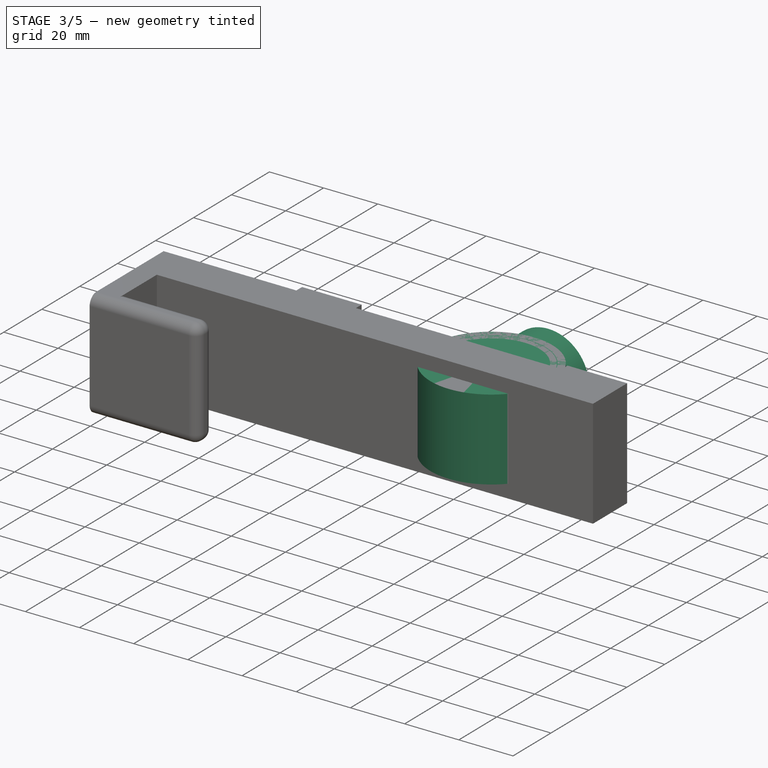
[diagram: stage 3 of 5 — iso view after this stage's code; geometry added in this stage tinted green]
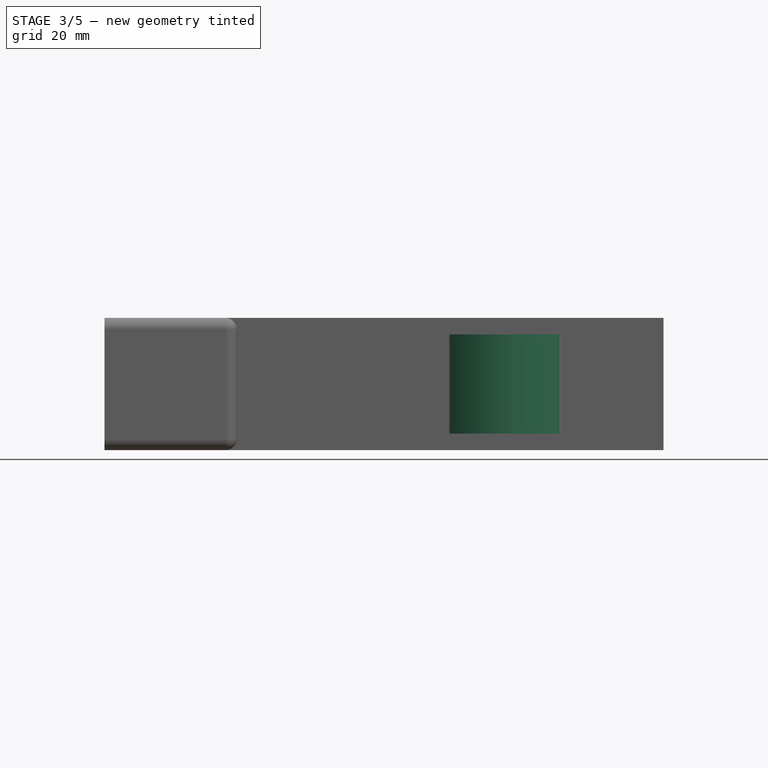
[diagram: stage 3 of 5 — front view after this stage's code; geometry added in this stage tinted green]
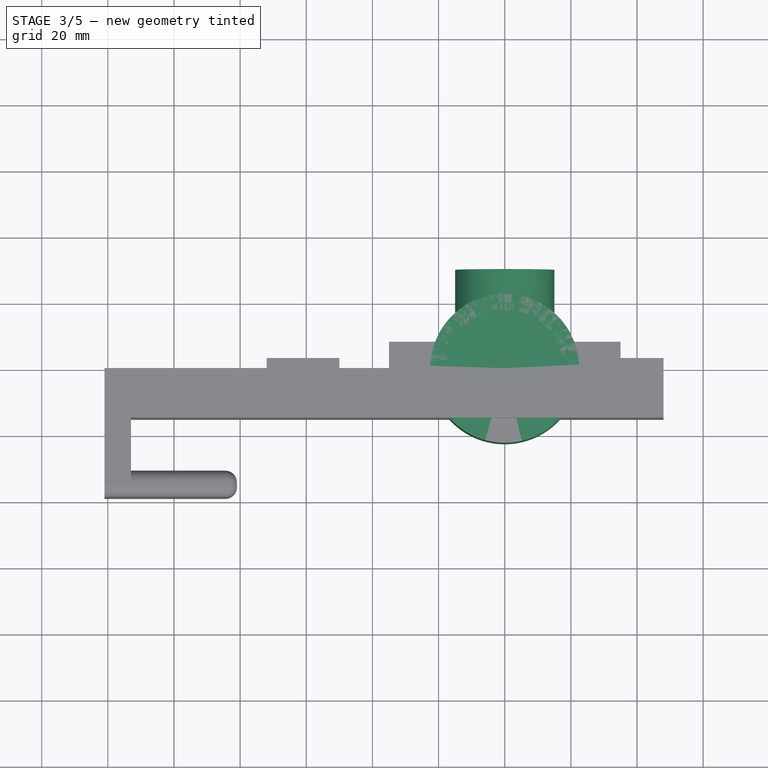
[diagram: stage 3 of 5 — top view after this stage's code; geometry added in this stage tinted green]
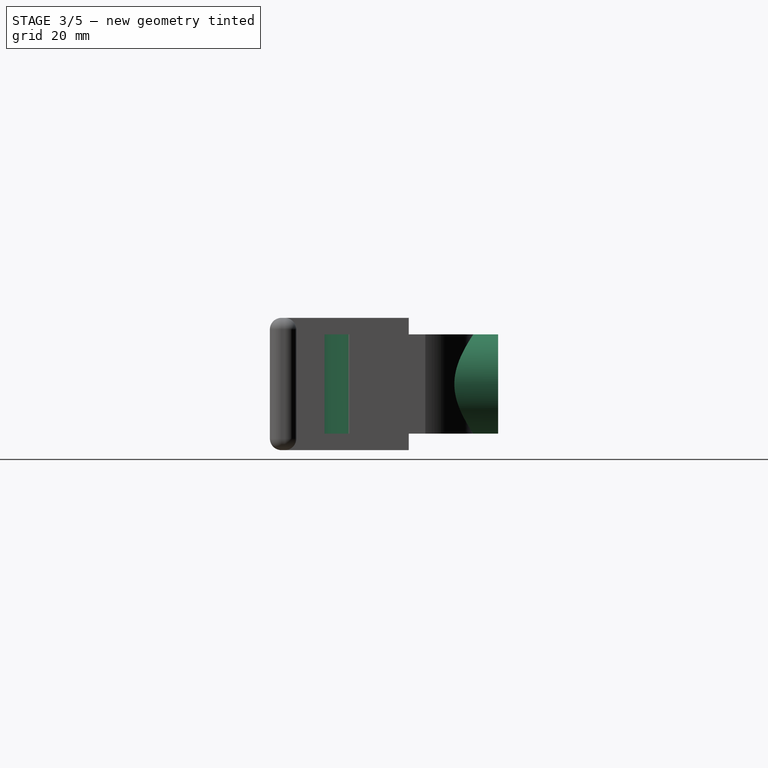
[diagram: stage 3 of 5 — right view after this stage's code; geometry added in this stage tinted green]
FEATURE [PartDesign::Pad] Pad
  Direction = (0,0,1)
  Length = 30
  Length2 = 10
  Midplane = true
  Profile = -> Sketch
  ReferenceAxis = -> Sketch [N_Axis]
  Type = 0
  expr: Length = <<support_sheet>>.tube_length
FEATURE [PartDesign::Pad] Pad006
  BaseFeature = -> Pad
  Direction = (0,-1,-2e-16)
  Length = 30
  Length2 = 10
  Profile = -> Sketch001
  ReferenceAxis = -> Sketch001 [N_Axis]
  Reversed = true
  Type = 0
  expr: Length = <<support_sheet>>.bolt_height
FEATURE [PartDesign::Pocket] Pocket
  BaseFeature = -> Pad006
  Direction = (0,-1,2e-16)
  Length = 30
  Length2 = 5
  Profile = -> Sketch003
  ReferenceAxis = -> Sketch003 [N_Axis]
  Type = 0
  expr: Length = <<support_sheet>>.bolt_height
FEATURE [PartDesign::SubtractiveHelix] SubtractiveHelix
  Angle = 0
  Axis = (0,1,0)
  Base = (0,0,0)
  BaseFeature = -> Pocket
  Growth = 0
  HasBeenEdited = true
  Height = 16
  LeftHanded = false
  Mode = 0
  Outside = false
  Pitch = 2
  Profile = -> Sketch004
  ReferenceAxis = -> Sketch004 [V_Axis]
  Reversed = true
  Turns = 8
  expr: Height = <<support_sheet>>.thread_size + 3 * <<support_sheet>>.thread_space
  expr: Pitch = <<support_sheet>>.thread_space
FEATURE [Spreadsheet::Sheet] Spreadsheet001  label="support_sheet"
  cells = A2='tube_diameter; B2(tube_diameter)=40; A3='tube_space; B3(tube_space)=5; A4='bolt_height; B4(bolt_height)==B2 / 2 + B16; C4='calc; A5='bolt_spacer; B5(bolt_spacer)=10; A6='thread_space; B6(thread_space)=2; A7='bolt_size; B7(bolt_size)=10; A8='tube_length; B8(tube_length)=30; A9='bolt_tolerance; B9(bolt_tolerance)=0.8; A10='bolt_case; B10(bolt_case)==B7 + 2; A11='bolt_slot; B11(bolt_slot)==B8; A12='tube_outer_d; B12(tube_outer_d)==B2 + B3; C12='calc; A13='thread_x; B13(thread_x)==B10 / 2 - 0.2; A14='thread_start; B14(thread_start)==B4 / 2; A15='thread_size; B15(thread_size)==B16; A16='bolt_slot_size; B16(bolt_slot_size)=10; A17='tube_screw_slot_x_pos; B17(tube_screw_slot_x_pos)==B19 / 2; A18='tube_screw_slot_y; B18(tube_screw_slot_y)=0; A19='tube_screw_slot_x_size; B19(tube_screw_slot_x_size)==B2 + 2 * 15; A20='tube_screw_slot_y_size; B20(tube_screw_slot_y_size)=8; A21='tube_screw_hole; B21(tube_screw_hole)=6.5; A22='tube_screw_slot_screw; B22(tube_screw_slot_screw)==B21 + 3; A23='tube_scre_slot_bolt; B23(tube_scre_slot_bolt)==B21 + 3; A24='tube_cut_hold_x; B24(tube_cut_hold_x)==B2 + B3; A25='bolt_oct_d; B25(bolt_oct_d)=20; A26='bolt_oct_h; B26(bolt_oct_h)=5; A27='thread_end; B27(thread_end)=0.2; A28='tube_screw_slot_bolt_d; B28(tube_screw_slot_bolt_d)=5.4; A29='cuter_bolt_d; B29(cuter_bolt_d)=10; A30=0
FEATURE [Sketcher::SketchObject] Sketch025
  FullyConstrained = true
  MapMode = 5
  Placement = pos=(0,0,0) rot=(1,0,0;1.5708rad)
  Support = -> [XZ_Plane005]
  expr: Constraints[1] = <<support_sheet>>.bolt_case - 2
  sketch-geometry (1):
    g0: Circle CenterX=0 CenterY=0 CenterZ=0 NormalX=0 NormalY=0 NormalZ=1 AngleXU=0 Radius=5
  constraints (2):
    c: Coincident(g0,g-1)
    c: Diameter(g0) = 10
FEATURE [PartDesign::Pad] Pad011
  Direction = (0,-1,-2e-16)
  Length = 12
  Length2 = 10
  Placement = pos=(0,0,0) rot=(1,0,0;1.5708rad)
  Profile = -> Sketch025
  ReferenceAxis = -> Sketch025 [N_Axis]
  Reversed = true
  Type = 0
  expr: Length = <<support_sheet>>.thread_size + 2
FEATURE [Sketcher::SketchObject] Sketch026
  FullyConstrained = true
  MapMode = 5
  Support = -> [XY_Plane005]
  expr: Constraints[10] = <<support_sheet>>.thread_space - 0.5
  expr: Constraints[7] = <<support_sheet>>.thread_x - 1
  sketch-geometry (4):
    g0: LineSegment StartX=6.3 StartY=1.09756 StartZ=0 EndX=4.8 EndY=1.8 EndZ=0
    g1: LineSegment StartX=4.8 StartY=1.8 StartZ=0 EndX=4.8 EndY=0 EndZ=0
    g2: LineSegment StartX=4.8 StartY=0 StartZ=0 EndX=6.3 EndY=0.797564 EndZ=0
    g3: LineSegment StartX=6.3 StartY=0.797564 StartZ=0 EndX=6.3 EndY=1.09756 EndZ=0
  constraints (12):
    c: Coincident(g0,g1)
    c: Vertical(g1)
    c: Coincident(g1,g2)
    c: Coincident(g2,g3)
    c: Coincident(g3,g0)
    c: DistanceY(g1,g1) = 1.8
    c: Vertical(g3)
    c: DistanceX(g-1,g1) = 4.8
    c: PointOnObject(g1,g-1)
    c: DistanceY(g3,g3) = 0.3
    c: DistanceX(g0,g0) = 1.5
    c: Angle(g2,g1) = 1.0821
FEATURE [PartDesign::AdditiveHelix] AdditiveHelix001
  Angle = 0
  Axis = (0,1,0)
  Base = (0,0,0)
  BaseFeature = -> Pad011
  Growth = 0
  HasBeenEdited = true
  Height = 8.5
  LeftHanded = false
  Mode = 0
  Outside = false
  Pitch = 2
  Placement = pos=(0,0,0) rot=(1,0,0;1.5708rad)
  Profile = -> Sketch026
  ReferenceAxis = -> Sketch026 [V_Axis]
  Turns = 4.25
  expr: Pitch = <<support_sheet>>.thread_space
FEATURE [Sketcher::SketchObject] Sketch027
  FullyConstrained = true
  MapMode = 5
  Placement = pos=(0,0,0) rot=(1,0,0;1.5708rad)
  Support = -> [XZ_Plane005]
  sketch-geometry (1):
    g0: Circle CenterX=0 CenterY=0 CenterZ=0 NormalX=0 NormalY=0 NormalZ=1 AngleXU=0 Radius=12.5
  constraints (2):
    c: Coincident(g0,g-1)
    c: Diameter(g0) = 25
FEATURE [PartDesign::Pad] Pad012
  BaseFeature = -> AdditiveHelix001
  Direction = (0,-1,-2e-16)
  Length = 5
  Length2 = 10
  Placement = pos=(0,0,0) rot=(1,0,0;1.5708rad)
  Profile = -> Sketch027
  ReferenceAxis = -> Sketch027 [N_Axis]
  Type = 0
FEATURE [Sketcher::SketchObject] Sketch028
  FullyConstrained = true
  MapMode = 5
  Placement = pos=(0,0,0) rot=(1,0,0;1.5708rad)
  Support = -> [XZ_Plane005]
  expr: Constraints[10] = <<support_sheet>>.cuter_bolt_d
  expr: Constraints[11] = <<support_sheet>>.cuter_bolt_d
  expr: Constraints[4] = <<support_sheet>>.cuter_bolt_d
  expr: Constraints[5] = <<support_sheet>>.cuter_bolt_d
  expr: Constraints[6] = <<support_sheet>>.cuter_bolt_d
  expr: Constraints[7] = <<support_sheet>>.cuter_bolt_d
  expr: Constraints[8] = <<support_sheet>>.cuter_bolt_d
  expr: Constraints[9] = <<support_sheet>>.cuter_bolt_d
  sketch-geometry (4):
    g0: Circle CenterX=-10 CenterY=-10 CenterZ=0 NormalX=0 NormalY=0 NormalZ=1 AngleXU=0 Radius=6
    g1: Circle CenterX=10 CenterY=-10 CenterZ=0 NormalX=0 NormalY=0 NormalZ=1 AngleXU=0 Radius=6
    g2: Circle CenterX=-10 CenterY=10 CenterZ=0 NormalX=0 NormalY=0 NormalZ=1 AngleXU=0 Radius=6
    g3: Circle CenterX=10 CenterY=10 CenterZ=0 NormalX=0 NormalY=0 NormalZ=1 AngleXU=0 Radius=6
  constraints (12):
    c: Diameter(g1) = 12
    c: Diameter(g2) = 12
    c: Diameter(g3) = 12
    c: Diameter(g0) = 12
    c: DistanceX(g2,g-1) = 10
    c: DistanceX(g-1,g3) = 10
    c: DistanceX(g-1,g1) = 10
    c: DistanceX(g0,g-1) = 10
    c: DistanceY(g1,g-1) = 10
    c: DistanceY(g-1,g3) = 10
    c: DistanceY(g-1,g2) = 10
    c: DistanceY(g0,g-1) = 10
FEATURE [PartDesign::Pocket] Pocket014
  BaseFeature = -> Pad012
  Direction = (0,1,2e-16)
  Length = 5
  Length2 = 5
  Placement = pos=(0,0,0) rot=(1,0,0;1.5708rad)
  Profile = -> Sketch028
  ReferenceAxis = -> Sketch028 [N_Axis]
  Reversed = true
  Type = 1
FEATURE [PartDesign::Body] Body  label="support_A"
  Group = -> [Sketch,Sketch001,Sketch002,Sketch003,Sketch004,Sketch010,Sketch011,Sketch012,Sketch013,Pad,Pad006,Pocket,SubtractiveHelix,Pocket005,Pad007,Pocket006,Pocket007,Pocket031]
  Origin = -> Origin001
  Tip = -> Pocket031
FEATURE [PartDesign::Chamfer] Chamfer
  Angle = 45
  Base = -> Pocket014 [Face34]
  BaseFeature = -> Pocket014
  ChamferType = 0
  FlipDirection = false
  Placement = pos=(0,0,0) rot=(1,0,0;1.5708rad)
  Size = 1.6
  Size2 = 1
  SupportTransform = false
  UseAllEdges = false
FEATURE [Sketcher::SketchObject] Sketch029
  FullyConstrained = false
  MapMode = 45
  Placement = pos=(3.61273,9.64031,-3.61273) rot=(0.342359,0.668042,0.66069;3.56033rad)
  Support = -> [Chamfer]
  sketch-geometry (3):
    g0: LineSegment StartX=-1.78434 StartY=-0.62474 StartZ=0 EndX=1.6072 EndY=-3.57537 EndZ=0
    g1: LineSegment StartX=1.6072 StartY=-3.57537 StartZ=0 EndX=0.301401 EndY=-4.8574 EndZ=0
    g2: LineSegment StartX=0.301401 StartY=-4.8574 StartZ=0 EndX=-1.78434 EndY=-0.62474 EndZ=0
  constraints (4):
    c: Coincident(g0,g1)
    c: Coincident(g1,g2)
    c: Coincident(g2,g0)
    c: Distance(g0,g-1) = 3.92
FEATURE [PartDesign::Pocket] Pocket032
  BaseFeature = -> Chamfer
  Direction = (-0.161215,-0.983809,0.0782953)
  Length = 3
  Length2 = 5
  Midplane = true
  Placement = pos=(0,0,0) rot=(1,0,0;1.5708rad)
  Profile = -> Sketch029
  ReferenceAxis = -> Sketch029 [N_Axis]
  Type = 0
FEATURE [PartDesign::Fillet] Fillet
  Base = -> Pocket032 [Edge24]
  BaseFeature = -> Pocket032
  Placement = pos=(0,0,0) rot=(1,0,0;1.5708rad)
  Radius = 0.2
  SupportTransform = false
  UseAllEdges = false
FEATURE [PartDesign::Body] Body008  label="spacer"
  Group = -> [Sketch053,Pad020,Sketch054,Pocket033,Fillet009]
  Origin = -> Origin009
  Tip = -> Fillet009
FEATURE [Sketcher::SketchObject] Sketch055  label="thread_maker002"
  ExternalGeometry = -> [Pocket024]
  FullyConstrained = true
  MapMode = 5
  Support = -> [XY_Plane003]
  expr: Constraints[10] = <<bracket_sheet>>.back_fix_pad
  expr: Constraints[5] = Spreadsheet001.thread_space - 0.2
  expr: Constraints[8] = <<support_sheet>>.thread_space
  sketch-geometry (4):
    g0: LineSegment StartX=42.6 StartY=4.8 StartZ=0 EndX=42.6 EndY=3 EndZ=0
    g1: LineSegment StartX=42.6 StartY=3 StartZ=0 EndX=44.6 EndY=3.72794 EndZ=0
    g2: LineSegment StartX=44.6 StartY=3.72794 StartZ=0 EndX=44.6 EndY=4.12794 EndZ=0
    g3: LineSegment StartX=44.6 StartY=4.12794 StartZ=0 EndX=42.6 EndY=4.8 EndZ=0
  constraints (12):
    c: Vertical(g0)
    c: Coincident(g0,g1)
    c: Coincident(g1,g2)
    c: Coincident(g2,g3)
    c: Coincident(g3,g0)
    c: DistanceY(g0,g0) = 1.8
    c: DistanceY(g2,g2) = 0.4
    c: Vertical(g2)
    c: DistanceX(g0,g1) = 2
    c: Angle(g1,g0) = 1.22173
    c: DistanceY(g-1,g0) = 3
    c: DistanceX(g0,g-3) = 0.4
FEATURE [PartDesign::SubtractiveHelix] SubtractiveHelix002
  Angle = 0
  Axis = (0,-1,-2e-16)
  Base = (37,3,7e-16)
  BaseFeature = -> Pocket024
  Growth = 0
  HasBeenEdited = true
  Height = 9.88
  LeftHanded = false
  Mode = 0
  Outside = false
  Pitch = 2
  Placement = pos=(0,0,0) rot=(1,0,0;1.5708rad)
  Profile = -> Sketch055
  ReferenceAxis = -> Pocket024 [Edge99]
  Turns = 4.94
  expr: Pitch = <<support_sheet>>.thread_space
FEATURE [Sketcher::SketchObject] Sketch056  label="thread_maker003"
  ExternalGeometry = -> [SubtractiveHelix002]
  FullyConstrained = true
  MapMode = 5
  Support = -> [XY_Plane003]
  expr: Constraints[10] = <<bracket_sheet>>.back_fix_pad
  expr: Constraints[5] = Spreadsheet001.thread_space - 0.2
  expr: Constraints[8] = <<support_sheet>>.thread_space
  sketch-geometry (4):
    g0: LineSegment StartX=-55.4 StartY=4.8 StartZ=0 EndX=-55.4 EndY=3 EndZ=0
    g1: LineSegment StartX=-55.4 StartY=3 StartZ=0 EndX=-53.4 EndY=3.72794 EndZ=0
    g2: LineSegment StartX=-53.4 StartY=3.72794 StartZ=0 EndX=-53.4 EndY=4.12794 EndZ=0
    g3: LineSegment StartX=-53.4 StartY=4.12794 StartZ=0 EndX=-55.4 EndY=4.8 EndZ=0
  constraints (12):
    c: Vertical(g0)
    c: Coincident(g0,g1)
    c: Coincident(g1,g2)
    c: Coincident(g2,g3)
    c: Coincident(g3,g0)
    c: DistanceY(g0,g0) = 1.8
    c: DistanceY(g2,g2) = 0.4
    c: Vertical(g2)
    c: DistanceX(g0,g1) = 2
    c: Angle(g1,g0) = 1.22173
    c: DistanceY(g-1,g0) = 3
    c: DistanceX(g0,g-3) = 0.4
FEATURE [PartDesign::SubtractiveHelix] SubtractiveHelix003
  Angle = 0
  Axis = (0,-1,-2e-16)
  Base = (-61,3,7e-16)
  BaseFeature = -> SubtractiveHelix002
  Growth = 0
  HasBeenEdited = true
  Height = 9.88
  LeftHanded = false
  Mode = 0
  Outside = false
  Pitch = 2
  Placement = pos=(0,0,0) rot=(1,0,0;1.5708rad)
  Profile = -> Sketch056
  ReferenceAxis = -> SubtractiveHelix002 [Edge83]
  Turns = 4.94
  expr: Pitch = <<support_sheet>>.thread_space
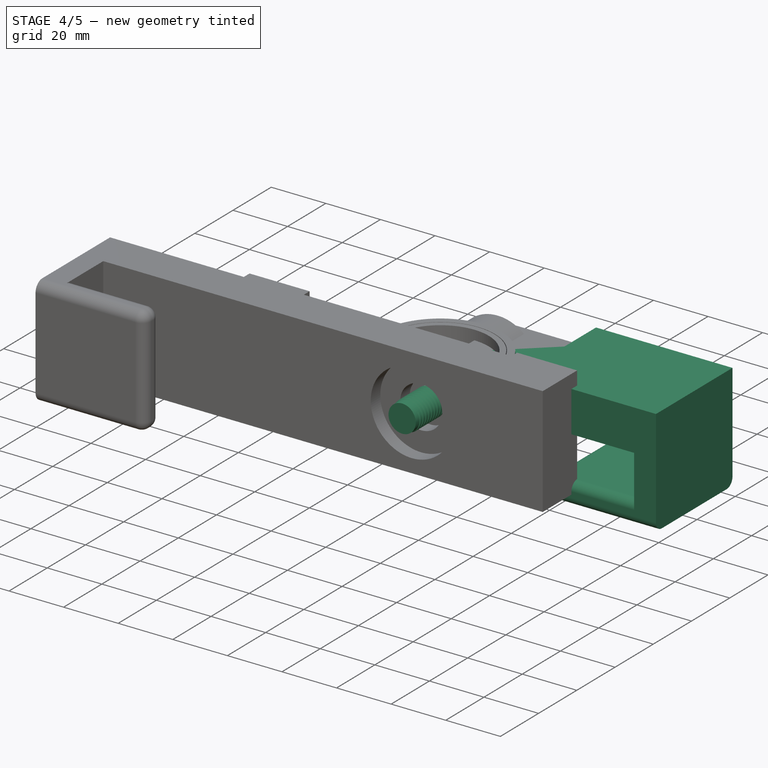
[diagram: stage 4 of 5 — iso view after this stage's code; geometry added in this stage tinted green]
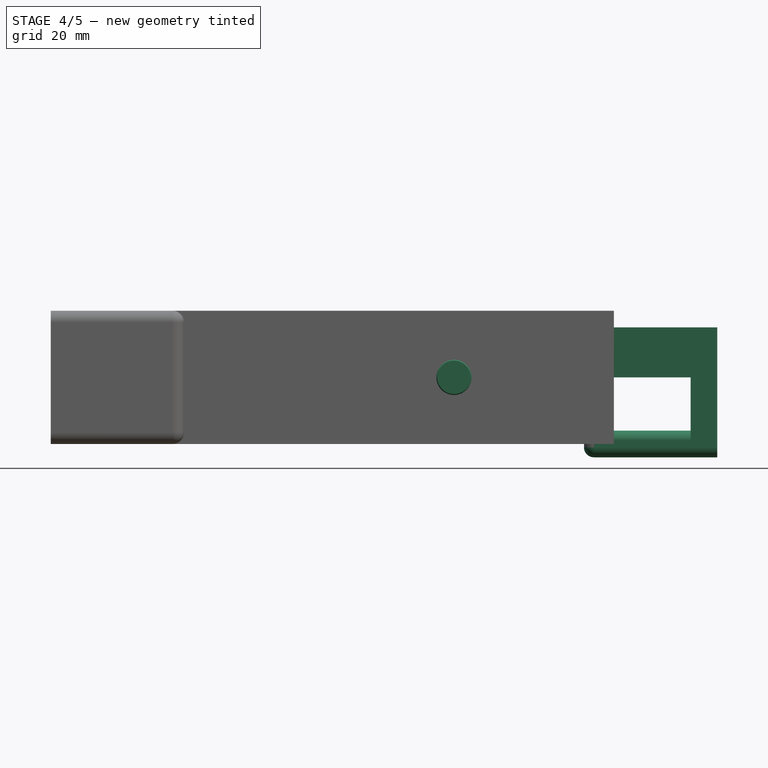
[diagram: stage 4 of 5 — front view after this stage's code; geometry added in this stage tinted green]
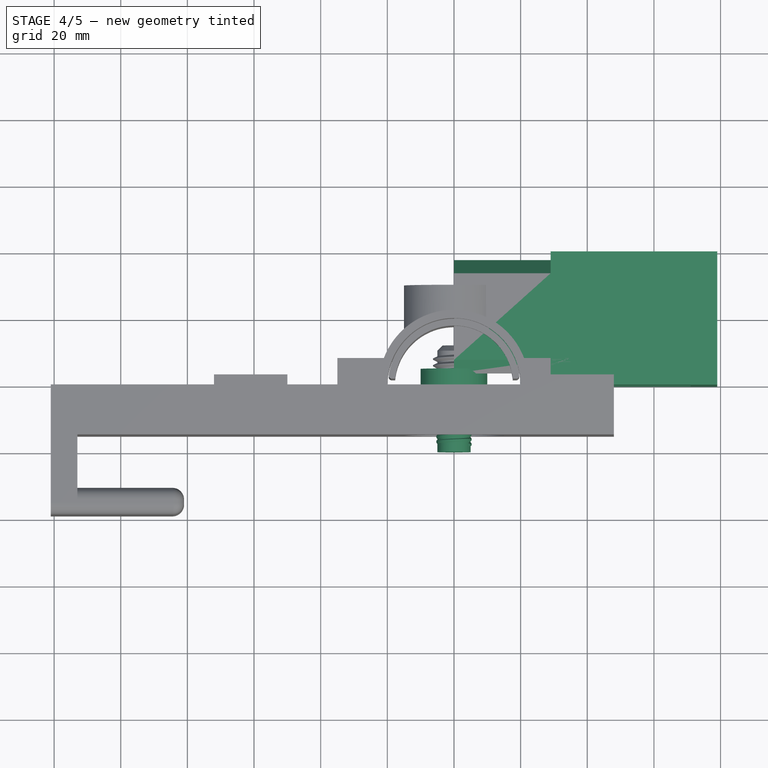
[diagram: stage 4 of 5 — top view after this stage's code; geometry added in this stage tinted green]
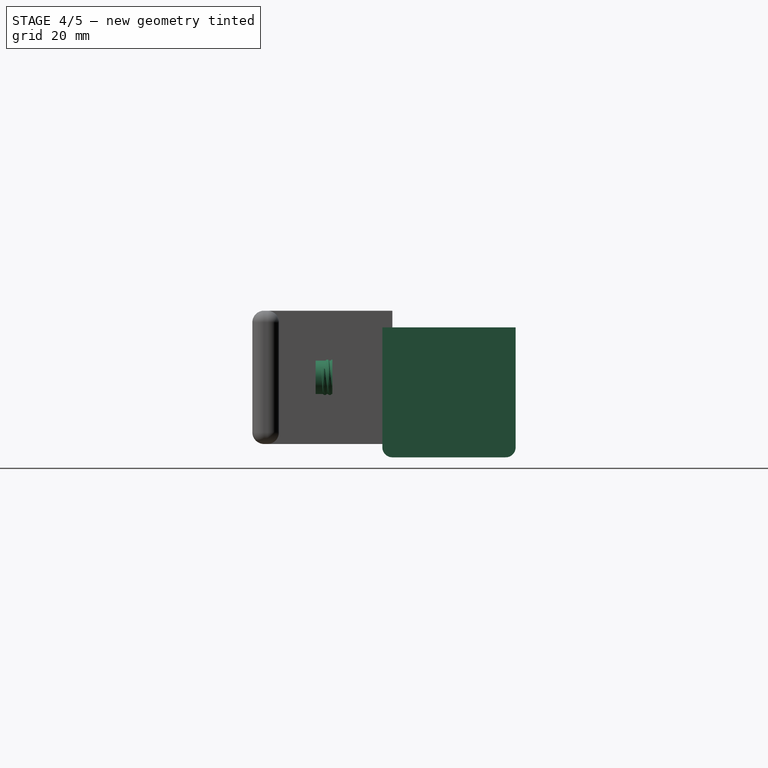
[diagram: stage 4 of 5 — right view after this stage's code; geometry added in this stage tinted green]
FEATURE [PartDesign::Pocket] Pocket005
  BaseFeature = -> SubtractiveHelix
  Direction = (0,0,-1)
  Length = 5
  Length2 = 5
  Midplane = true
  Profile = -> Sketch011
  ReferenceAxis = -> Sketch011 [N_Axis]
  Type = 1
FEATURE [PartDesign::Pad] Pad007
  BaseFeature = -> Pocket005
  Direction = (0,0,1)
  Length = 30
  Length2 = 10
  Midplane = true
  Profile = -> Sketch010
  ReferenceAxis = -> Sketch010 [N_Axis]
  Type = 0
  expr: Length = <<support_sheet>>.tube_length
FEATURE [PartDesign::Pocket] Pocket006
  BaseFeature = -> Pad007
  Direction = (0,0,-1)
  Length = 5
  Length2 = 5
  Midplane = true
  Profile = -> Sketch002
  ReferenceAxis = -> Sketch002 [N_Axis]
  Type = 1
FEATURE [PartDesign::Pocket] Pocket007
  BaseFeature = -> Pocket006
  Direction = (0,1,2e-16)
  Length = 5
  Length2 = 5
  Profile = -> Sketch012
  ReferenceAxis = -> Sketch012 [N_Axis]
  Type = 1
FEATURE [Sketcher::SketchObject] Sketch041
  FullyConstrained = true
  MapMode = 5
  Placement = pos=(0,0,0) rot=(1,0,0;1.5708rad)
  Support = -> [XZ_Plane007]
  expr: Constraints[1] = <<bracket_sheet>>.back_fix_screw_d
  sketch-geometry (1):
    g0: Circle CenterX=0 CenterY=0 CenterZ=0 NormalX=0 NormalY=0 NormalZ=1 AngleXU=0 Radius=5
  constraints (2):
    c: Coincident(g0,g-1)
    c: Diameter(g0) = 10
FEATURE [PartDesign::Pad] Pad015
  Direction = (0,-1,-2e-16)
  Length = 20
  Length2 = 10
  Placement = pos=(0,0,0) rot=(1,0,0;1.5708rad)
  Profile = -> Sketch041
  ReferenceAxis = -> Sketch041 [N_Axis]
  Type = 0
  expr: Length = <<bracket_sheet>>.back_fix_screw_l
FEATURE [Sketcher::SketchObject] Sketch042
  FullyConstrained = true
  MapMode = 5
  Placement = pos=(0,0,0) rot=(0.57735,0.57735,0.57735;2.0944rad)
  Support = -> [YZ_Plane007]
  expr: Constraints[6] = <<bracket_sheet>>.back_fix_thread_maker_p
  sketch-geometry (4):
    g0: LineSegment StartX=0 StartY=-4.8 StartZ=0 EndX=-1.5 EndY=-4.8 EndZ=0
    g1: LineSegment StartX=-1.5 StartY=-4.8 StartZ=0 EndX=-1 EndY=-5.3 EndZ=0
    g2: LineSegment StartX=-1 StartY=-5.3 StartZ=0 EndX=-0.5 EndY=-5.3 EndZ=0
    g3: LineSegment StartX=-0.5 StartY=-5.3 StartZ=0 EndX=0 EndY=-4.8 EndZ=0
  constraints (12):
    c: Horizontal(g0)
    c: Coincident(g0,g1)
    c: Coincident(g1,g2)
    c: Horizontal(g2)
    c: Coincident(g2,g3)
    c: Coincident(g3,g0)
    c: DistanceY(g0,g-1) = 4.8
    c: DistanceX(g0,g0) = 1.5
    c: DistanceX(g2,g2) = 0.5
    c: DistanceY(g1,g0) = 0.5
    c: DistanceX(g0,g1) = 0.5
    c: PointOnObject(g0,g-2)
FEATURE [PartDesign::AdditiveHelix] AdditiveHelix002
  Angle = 0
  Axis = (3e-16,1,-2e-16)
  Base = (0,0,0)
  BaseFeature = -> Pad015
  Growth = 0
  HasBeenEdited = true
  Height = 17
  LeftHanded = false
  Mode = 0
  Outside = false
  Pitch = 1.5
  Placement = pos=(0,0,0) rot=(1,0,0;1.5708rad)
  Profile = -> Sketch042
  ReferenceAxis = -> Sketch042 [H_Axis]
  Reversed = true
  Turns = 11.3333
  expr: Height = <<bracket_sheet>>.back_fix_screw_l - 3
  expr: Pitch = <<bracket_sheet>>.back_fix_thread_w
FEATURE [Sketcher::SketchObject] Sketch043
  FullyConstrained = true
  MapMode = 5
  Placement = pos=(0,0,0) rot=(1,0,0;1.5708rad)
  Support = -> [XZ_Plane007]
  expr: Constraints[1] = <<bracket_sheet>>.back_fix_screw_d * 2
  sketch-geometry (1):
    g0: Circle CenterX=0 CenterY=0 CenterZ=0 NormalX=0 NormalY=0 NormalZ=1 AngleXU=0 Radius=10
  constraints (2):
    c: Coincident(g0,g-1)
    c: Diameter(g0) = 20
FEATURE [PartDesign::Pad] Pad016
  BaseFeature = -> AdditiveHelix002
  Direction = (0,-1,-2e-16)
  Length = 5
  Length2 = 10
  Placement = pos=(0,0,0) rot=(1,0,0;1.5708rad)
  Profile = -> Sketch043
  ReferenceAxis = -> Sketch043 [N_Axis]
  Reversed = true
  Type = 0
FEATURE [PartDesign::Body] Body006  label="screw_back"
  Group = -> [Sketch041,Pad015,Sketch042,AdditiveHelix002,Sketch043,Pad016,Sketch044,Pocket025,Chamfer002,Sketch045,Pocket026,Fillet006]
  Origin = -> Origin007
  Placement = pos=(61.1,0,0) rot=(0,0,1;0rad)
  Tip = -> Fillet006
FEATURE [Sketcher::SketchObject] Sketch049
  FullyConstrained = true
  MapMode = 5
  Placement = pos=(0,0,0) rot=(0.57735,0.57735,0.57735;2.0944rad)
  Support = -> [YZ_Plane008]
  expr: Constraints[10] = <<bracket_sheet>>.br_h
  expr: Constraints[8] = <<bracket_sheet>>.br_w
  sketch-geometry (4):
    g0: LineSegment StartX=0 StartY=15 StartZ=0 EndX=40 EndY=15 EndZ=0
    g1: LineSegment StartX=40 StartY=15 StartZ=0 EndX=40 EndY=0 EndZ=0
    g2: LineSegment StartX=40 StartY=0 StartZ=0 EndX=0 EndY=0 EndZ=0
    g3: LineSegment StartX=0 StartY=0 StartZ=0 EndX=0 EndY=15 EndZ=0
  constraints (11):
    c: Coincident(g0,g1)
    c: Coincident(g1,g2)
    c: Coincident(g2,g3)
    c: Coincident(g3,g0)
    c: Horizontal(g0)
    c: Horizontal(g2)
    c: Vertical(g1)
    c: Vertical(g3)
    c: DistanceX(g0,g0) = 40
    c: Coincident(g2,g-1)
    c: DistanceY(g3,g3) = 15
FEATURE [PartDesign::Pad] Pad018
  Direction = (1,-2e-16,3e-16)
  Length = 79
  Length2 = 10
  Placement = pos=(0,0,0) rot=(1,1,1;2.0944rad)
  Profile = -> Sketch049
  ReferenceAxis = -> Sketch049 [N_Axis]
  Type = 0
  expr: Length = <<bracket_sheet>>.extender_l + <<bracket_sheet>>.extender_slot_case - <<bracket_sheet>>.tolerance
FEATURE [Sketcher::SketchObject] Sketch050
  ExternalGeometry = -> [Pad018]
  FullyConstrained = true
  MapMode = 5
  Placement = pos=(0,0,0) rot=(0.57735,0.57735,0.57735;2.0944rad)
  Support = -> [YZ_Plane008]
  expr: Constraints[10] = <<bracket_sheet>>.inner_br_w
  expr: Constraints[16] = <<bracket_sheet>>.br_wall + <<bracket_sheet>>.tolerance
  expr: Constraints[17] = <<bracket_sheet>>.br_h / 2
  expr: Constraints[8] = <<bracket_sheet>>.br_wall + <<bracket_sheet>>.tolerance
  expr: Constraints[9] = <<bracket_sheet>>.br_wall + <<bracket_sheet>>.tolerance
  sketch-geometry (10):
    g0: LineSegment StartX=3.5 StartY=7.5 StartZ=0 EndX=7.5 EndY=11.5 EndZ=0
    g1: LineSegment StartX=7.5 StartY=11.5 StartZ=0 EndX=33.5 EndY=11.5 EndZ=0
    g2: LineSegment StartX=33.5 StartY=11.5 StartZ=0 EndX=37.5 EndY=7.5 EndZ=0
    g3: LineSegment StartX=37.5 StartY=7.5 StartZ=0 EndX=33.5 EndY=3.5 EndZ=0
    g4: LineSegment StartX=33.5 StartY=3.5 StartZ=0 EndX=7.5 EndY=3.5 EndZ=0
    g5: LineSegment StartX=7.5 StartY=3.5 StartZ=0 EndX=3.5 EndY=7.5 EndZ=0
    g6: LineSegment StartX=0 StartY=15 StartZ=0 EndX=40 EndY=15 EndZ=0
    g7: LineSegment StartX=40 StartY=15 StartZ=0 EndX=40 EndY=0 EndZ=0
    g8: LineSegment StartX=40 StartY=0 StartZ=0 EndX=0 EndY=0 EndZ=0
    g9: LineSegment StartX=0 StartY=0 StartZ=0 EndX=0 EndY=15 EndZ=0
  constraints (28):
    c: Coincident(g0,g1)
    c: Horizontal(g1)
    c: Coincident(g1,g2)
    c: Coincident(g2,g3)
    c: Coincident(g3,g4)
    c: Horizontal(g4)
    c: Coincident(g4,g5)
    c: Coincident(g5,g0)
    c: DistanceY(g-1,g4) = 3.5
    c: DistanceX(g-1,g0) = 3.5
    c: DistanceX(g0,g2) = 34
    c: Angle(g2,g3) = 1.5708
    c: Angle(g5,g0) = 1.5708
    c: DistanceX(g4,g0) = 0
    c: DistanceX(g1,g3) = 0
    c: DistanceY(g0,g2) = 0
    c: DistanceY(g0,g-4) = 3.5
    c: DistanceY(g-1,g0) = 7.5
    c: Coincident(g6,g7)
    c: Coincident(g7,g8)
    c: Coincident(g8,g9)
    c: Coincident(g9,g6)
    c: Horizontal(g6)
    c: Horizontal(g8)
    c: Vertical(g7)
    c: Vertical(g9)
    c: Coincident(g6,g-4)
    c: Coincident(g7,g-3)
FEATURE [PartDesign::Pocket] Pocket029
  BaseFeature = -> Pad018
  Direction = (-1,2e-16,-3e-16)
  Length = 29
  Length2 = 5
  Placement = pos=(0,0,0) rot=(1,1,1;2.0944rad)
  Profile = -> Sketch050
  ReferenceAxis = -> Sketch050 [N_Axis]
  Reversed = true
  Type = 0
  expr: Length = <<bracket_sheet>>.extender_slot_case - <<bracket_sheet>>.tolerance
FEATURE [Sketcher::SketchObject] Sketch051
  ExternalGeometry = -> [Pocket029]
  FullyConstrained = true
  MapMode = 5
  Placement = pos=(0,0,0) rot=(1,0,0;1.5708rad)
  Support = -> [XZ_Plane008]
  sketch-geometry (4):
    g0: LineSegment StartX=79 StartY=3.91e-14 StartZ=0 EndX=39 EndY=3.91e-14 EndZ=0
    g1: LineSegment StartX=39 StartY=3.91e-14 StartZ=0 EndX=39 EndY=-24 EndZ=0
    g2: LineSegment StartX=39 StartY=-24 StartZ=0 EndX=79 EndY=-24 EndZ=0
    g3: LineSegment StartX=79 StartY=-24 StartZ=0 EndX=79 EndY=3.91e-14 EndZ=0
  constraints (11):
    c: Coincident(g0,g1)
    c: Coincident(g1,g2)
    c: Coincident(g2,g3)
    c: Coincident(g3,g0)
    c: Horizontal(g0)
    c: Horizontal(g2)
    c: Vertical(g1)
    c: Vertical(g3)
    c: Coincident(g0,g-3)
    c: Distance(g3) = 24
    c: Distance(g2) = 40
FEATURE [PartDesign::Pad] Pad019
  BaseFeature = -> Pocket029
  Direction = (0,-1,-2e-16)
  Length = 40
  Length2 = 10
  Placement = pos=(0,0,0) rot=(1,1,1;2.0944rad)
  Profile = -> Sketch051
  ReferenceAxis = -> Sketch051 [N_Axis]
  Reversed = true
  Type = 0
  expr: Length = <<bracket_sheet>>.br_w
FEATURE [Sketcher::SketchObject] Sketch052
  ExternalGeometry = -> [Pad019]
  FullyConstrained = true
  MapMode = 5
  Placement = pos=(0,0,0) rot=(1,0,0;1.5708rad)
  Support = -> [XZ_Plane008]
  sketch-geometry (4):
    g0: LineSegment StartX=39 StartY=4.26e-14 StartZ=0 EndX=71 EndY=4.26e-14 EndZ=0
    g1: LineSegment StartX=71 StartY=4.26e-14 StartZ=0 EndX=71 EndY=-16 EndZ=0
    g2: LineSegment StartX=71 StartY=-16 StartZ=0 EndX=39 EndY=-16 EndZ=0
    g3: LineSegment StartX=39 StartY=-16 StartZ=0 EndX=39 EndY=4.26e-14 EndZ=0
  constraints (11):
    c: Coincident(g0,g1)
    c: Coincident(g1,g2)
    c: Coincident(g2,g3)
    c: Coincident(g3,g0)
    c: Horizontal(g0)
    c: Horizontal(g2)
    c: Vertical(g1)
    c: Vertical(g3)
    c: Distance(g3) = 16
    c: DistanceX(g2,g2) = 32
    c: Coincident(g0,g-3)
FEATURE [PartDesign::Pocket] Pocket030
  BaseFeature = -> Pad019
  Direction = (0,1,2e-16)
  Length = 5
  Length2 = 5
  Placement = pos=(0,0,0) rot=(1,1,1;2.0944rad)
  Profile = -> Sketch052
  ReferenceAxis = -> Sketch052 [N_Axis]
  Type = 1
FEATURE [PartDesign::Fillet] Fillet008
  Base = -> Pocket030 [Edge40,Edge50,Edge47,Edge46,Edge39,Edge49,Edge45,Edge38]
  BaseFeature = -> Pocket030
  Placement = pos=(0,0,0) rot=(1,1,1;2.0944rad)
  Radius = 3
  SupportTransform = false
  UseAllEdges = false
FEATURE [PartDesign::Body] Body007  label="top_extension"
  Group = -> [Sketch049,Pad018,Sketch050,Pocket029,Sketch051,Sketch052,Pad019,Pocket030,Fillet008]
  Origin = -> Origin008
  Placement = pos=(49.7111,-57.1,20.2931) rot=(-1,0,0;1.5708rad)
  Tip = -> Fillet008
FEATURE [PartDesign::Pocket] Pocket031
  BaseFeature = -> Pocket007
  Direction = (0,-1,-2e-16)
  Length = 3
  Length2 = 5
  Profile = -> Sketch013
  ReferenceAxis = -> Sketch013 [N_Axis]
  Type = 0
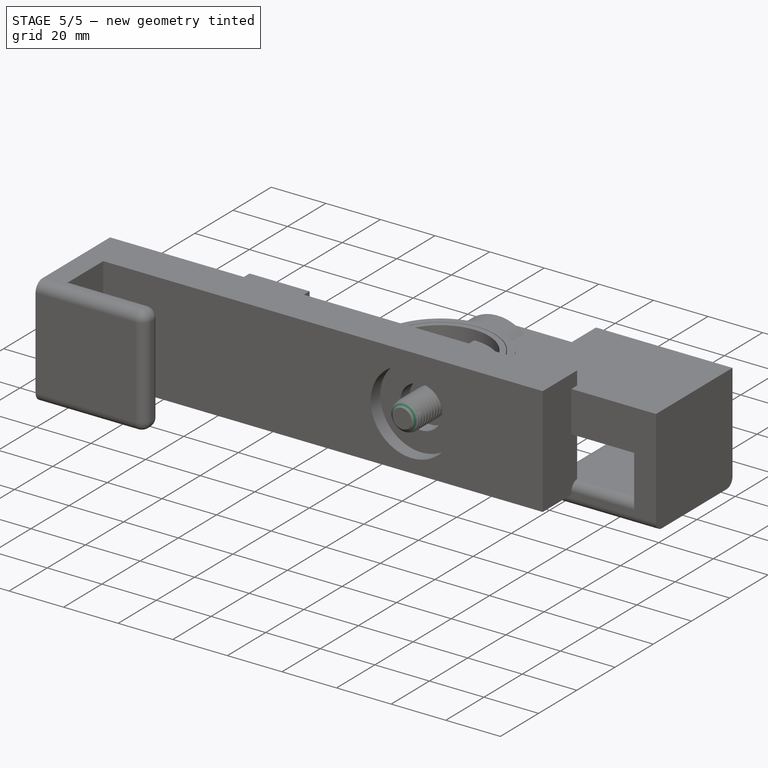
[diagram: stage 5 of 5 — iso view after this stage's code; geometry added in this stage tinted green]
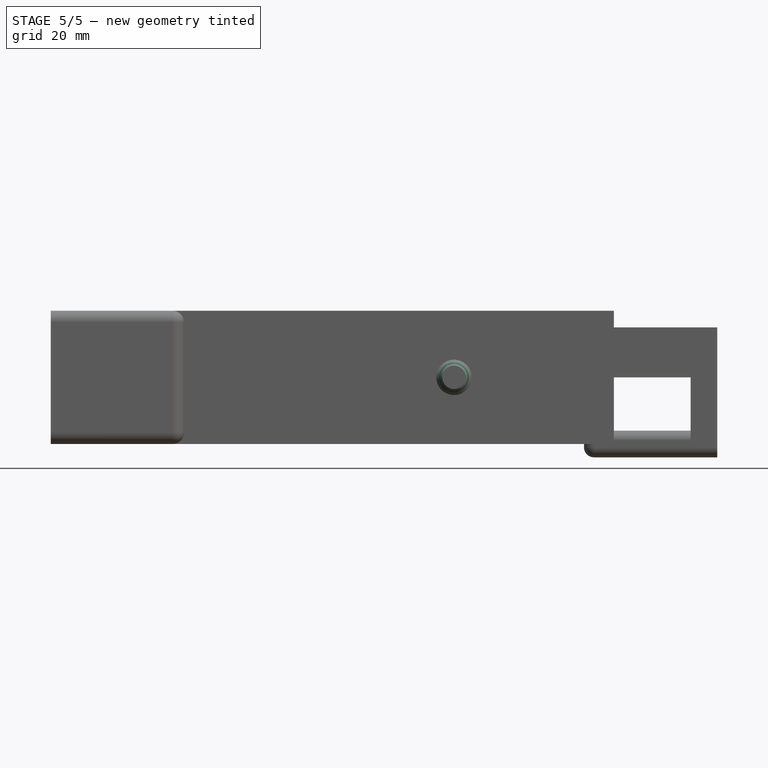
[diagram: stage 5 of 5 — front view after this stage's code; geometry added in this stage tinted green]
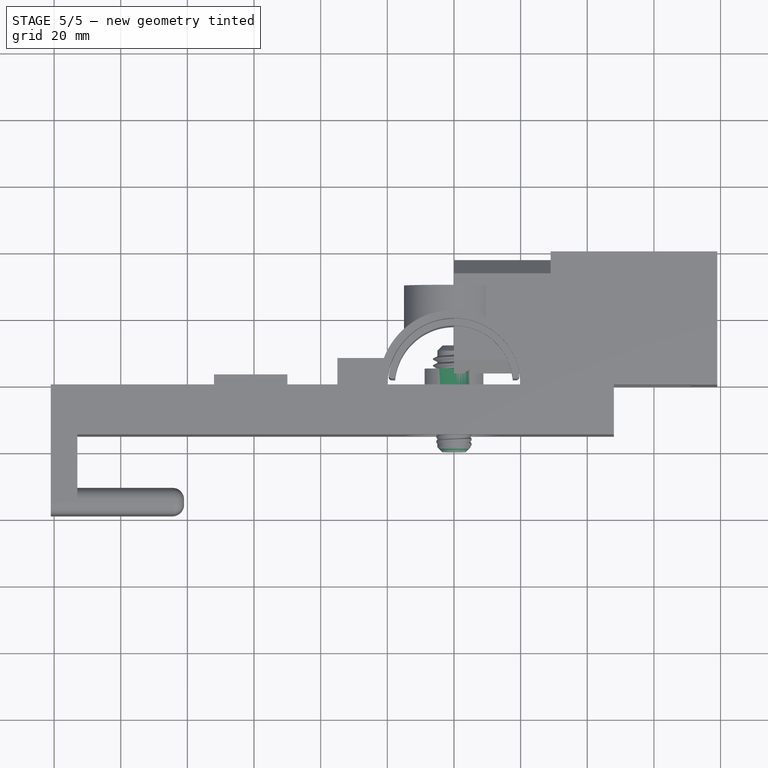
[diagram: stage 5 of 5 — top view after this stage's code; geometry added in this stage tinted green]
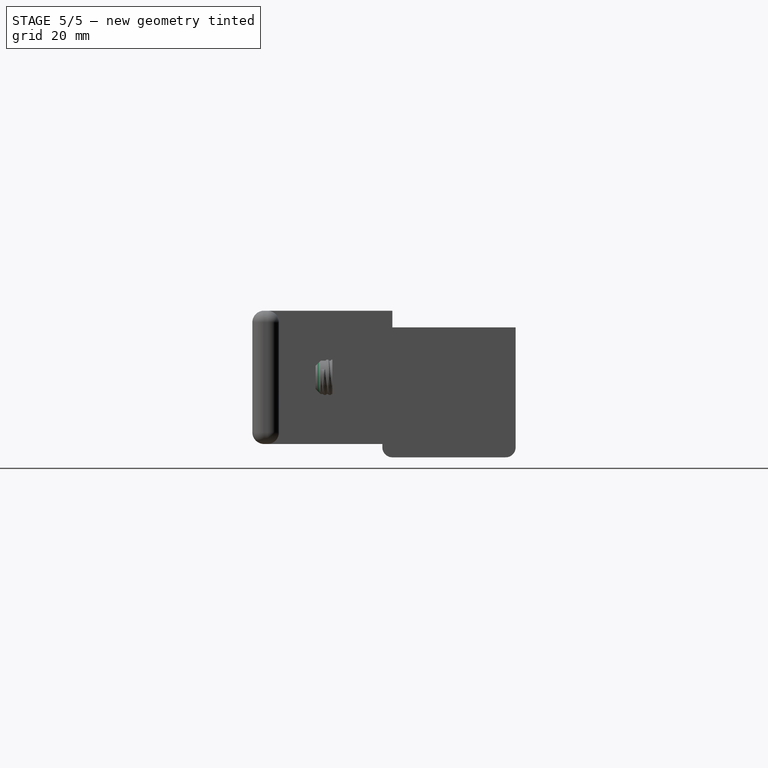
[diagram: stage 5 of 5 — right view after this stage's code; geometry added in this stage tinted green]
FEATURE [Sketcher::SketchObject] Sketch013  label="scre_slot"
  ExternalGeometry = -> [Pocket007]
  FullyConstrained = false
  MapMode = 5
  Placement = pos=(0,30,6.7e-15) rot=(0,0.707107,0.707107;3.14159rad)
  Support = -> [Pocket007]
  expr: Constraints[0] = <<support_sheet>>.tube_screw_slot_screw
  sketch-geometry (2):
    g0: Circle CenterX=28 CenterY=1.8e-15 CenterZ=0 NormalX=0 NormalY=0 NormalZ=1 AngleXU=0 Radius=3.7
    g1: Circle CenterX=-28 CenterY=1.8e-15 CenterZ=0 NormalX=0 NormalY=0 NormalZ=1 AngleXU=0 Radius=3.7
  constraints (4):
    c: Diameter(g0) = 9.5
    c: Equal(g0,g1)
    c: Coincident(g1,g-4)
    c: Coincident(g0,g-7)
FEATURE [Sketcher::SketchObject] Sketch016  label="tube_outer001"
  FullyConstrained = true
  MapMode = 5
  Support = -> [XY_Plane004]
  expr: Constraints[1] = Spreadsheet001.tube_outer_d
  sketch-geometry (1):
    g0: Circle CenterX=0 CenterY=0 CenterZ=0 NormalX=0 NormalY=0 NormalZ=1 AngleXU=0 Radius=22.5
  constraints (2):
    c: Coincident(g0,g-1)
    c: Diameter(g0) = 45
FEATURE [PartDesign::Pad] Pad008
  Direction = (0,0,1)
  Length = 30
  Length2 = 10
  Midplane = true
  Profile = -> Sketch016
  ReferenceAxis = -> Sketch016 [N_Axis]
  Type = 0
  expr: Length = Spreadsheet001.tube_length
FEATURE [Sketcher::SketchObject] Sketch017  label="bolt_fix001"
  FullyConstrained = true
  MapMode = 5
  Placement = pos=(0,0,0) rot=(1,0,0;1.5708rad)
  Support = -> [XZ_Plane004]
  expr: Constraints[1] = Spreadsheet001.bolt_slot
  sketch-geometry (1):
    g0: Circle CenterX=0 CenterY=0 CenterZ=0 NormalX=0 NormalY=0 NormalZ=1 AngleXU=0 Radius=15
  constraints (2):
    c: Coincident(g0,g-1)
    c: Diameter(g0) = 30
FEATURE [PartDesign::Pad] Pad009
  BaseFeature = -> Pad008
  Direction = (0,-1,-2e-16)
  Length = 30
  Length2 = 10
  Profile = -> Sketch017
  ReferenceAxis = -> Sketch017 [N_Axis]
  Reversed = true
  Type = 0
  expr: Length = Spreadsheet001.bolt_height
FEATURE [Sketcher::SketchObject] Sketch018  label="tube_inner001"
  FullyConstrained = true
  MapMode = 5
  Support = -> [XY_Plane004]
  expr: Constraints[1] = Spreadsheet001.tube_diameter
  sketch-geometry (1):
    g0: Circle CenterX=0 CenterY=0 CenterZ=0 NormalX=0 NormalY=0 NormalZ=1 AngleXU=0 Radius=20
  constraints (2):
    c: Coincident(g0,g-1)
    c: Diameter(g0) = 40
FEATURE [Sketcher::SketchObject] Sketch020  label="thread_maker001"
  FullyConstrained = true
  MapMode = 5
  Support = -> [XY_Plane004]
  expr: Constraints[11] = <<support_sheet>>.bolt_slot
  expr: Constraints[5] = Spreadsheet001.thread_space - 0.2
  expr: Constraints[7] = Spreadsheet001.thread_x
  expr: Constraints[9] = <<support_sheet>>.thread_space
  sketch-geometry (4):
    g0: LineSegment StartX=5.8 StartY=31.8 StartZ=0 EndX=5.8 EndY=30 EndZ=0
    g1: LineSegment StartX=5.8 StartY=30 StartZ=0 EndX=7.8 EndY=30.7279 EndZ=0
    g2: LineSegment StartX=7.8 StartY=30.7279 StartZ=0 EndX=7.8 EndY=31.1279 EndZ=0
    g3: LineSegment StartX=7.8 StartY=31.1279 StartZ=0 EndX=5.8 EndY=31.8 EndZ=0
  constraints (12):
    c: Vertical(g0)
    c: Coincident(g0,g1)
    c: Coincident(g1,g2)
    c: Coincident(g2,g3)
    c: Coincident(g3,g0)
    c: DistanceY(g0,g0) = 1.8
    c: DistanceY(g2,g2) = 0.4
    c: DistanceX(g-1,g0) = 5.8
    c: Vertical(g2)
    c: DistanceX(g0,g1) = 2
    c: Angle(g1,g0) = 1.22173
    c: DistanceY(g-1,g0) = 30
FEATURE [Sketcher::SketchObject] Sketch021  label="screw_support001"
  FullyConstrained = true
  MapMode = 5
  Support = -> [XY_Plane004]
  expr: Constraints[10] = Spreadsheet001.tube_screw_slot_y_size
  expr: Constraints[11] = Spreadsheet001.tube_screw_slot_y
  expr: Constraints[8] = Spreadsheet001.tube_screw_slot_x_size
  expr: Constraints[9] = Spreadsheet001.tube_screw_slot_x_pos
  sketch-geometry (4):
    g0: LineSegment StartX=-35 StartY=8 StartZ=0 EndX=35 EndY=8 EndZ=0
    g1: LineSegment StartX=35 StartY=8 StartZ=0 EndX=35 EndY=0 EndZ=0
    g2: LineSegment StartX=35 StartY=0 StartZ=0 EndX=-35 EndY=0 EndZ=0
    g3: LineSegment StartX=-35 StartY=0 StartZ=0 EndX=-35 EndY=8 EndZ=0
  constraints (12):
    c: Coincident(g0,g1)
    c: Coincident(g1,g2)
    c: Coincident(g2,g3)
    c: Coincident(g3,g0)
    c: Horizontal(g0)
    c: Horizontal(g2)
    c: Vertical(g1)
    c: Vertical(g3)
    c: DistanceX(g0,g0) = 70
    c: DistanceX(g-1,g0) = 35
    c: DistanceY(g3,g3) = 8
    c: DistanceY(g2,g-1) = 0
FEATURE [Sketcher::SketchObject] Sketch022  label="cut_half001"
  FullyConstrained = true
  MapMode = 5
  Support = -> [XY_Plane004]
  expr: Constraints[10] = Spreadsheet001.tube_cut_hold_x / 2
  expr: Constraints[11] = Spreadsheet001.tube_cut_hold_x / 2
  expr: Constraints[8] = Spreadsheet001.tube_cut_hold_x
  expr: Constraints[9] = Spreadsheet001.tube_cut_hold_x / 2
  sketch-geometry (4):
    g0: LineSegment StartX=-22.5 StartY=0 StartZ=0 EndX=22.5 EndY=0 EndZ=0
    g1: LineSegment StartX=22.5 StartY=0 StartZ=0 EndX=22.5 EndY=-22.5 EndZ=0
    g2: LineSegment StartX=22.5 StartY=-22.5 StartZ=0 EndX=-22.5 EndY=-22.5 EndZ=0
    g3: LineSegment StartX=-22.5 StartY=-22.5 StartZ=0 EndX=-22.5 EndY=0 EndZ=0
  constraints (12):
    c: Coincident(g0,g1)
    c: Coincident(g1,g2)
    c: Coincident(g2,g3)
    c: Coincident(g3,g0)
    c: Horizontal(g0)
    c: Horizontal(g2)
    c: Vertical(g1)
    c: Vertical(g3)
    c: DistanceX(g0,g0) = 45
    c: DistanceX(g-1,g0) = 22.5
    c: DistanceY(g1,g1) = 22.5
    c: DistanceY(g1,g-1) = 22.5
FEATURE [PartDesign::Pocket] Pocket010
  BaseFeature = -> Pad009
  Direction = (0,0,-1)
  Length = 5
  Length2 = 5
  Midplane = true
  Profile = -> Sketch022
  ReferenceAxis = -> Sketch022 [N_Axis]
  Type = 1
FEATURE [PartDesign::Pad] Pad010
  BaseFeature = -> Pocket010
  Direction = (0,0,1)
  Length = 30
  Length2 = 10
  Midplane = true
  Profile = -> Sketch021
  ReferenceAxis = -> Sketch021 [N_Axis]
  Type = 0
  expr: Length = Spreadsheet001.tube_length
FEATURE [PartDesign::Pocket] Pocket011
  BaseFeature = -> Pad010
  Direction = (0,0,-1)
  Length = 5
  Length2 = 5
  Midplane = true
  Profile = -> Sketch018
  ReferenceAxis = -> Sketch018 [N_Axis]
  Type = 1
FEATURE [Sketcher::SketchObject] Sketch023  label="screw_hole001"
  FullyConstrained = true
  MapMode = 5
  Placement = pos=(0,0,0) rot=(1,0,0;1.5708rad)
  Support = -> [XZ_Plane004]
  expr: Constraints[1] = Spreadsheet001.tube_screw_hole
  expr: Constraints[2] = Spreadsheet001.tube_screw_slot_x_size / 2 - 7
  expr: Constraints[5] = Spreadsheet001.tube_screw_slot_x_size / 2 - 7
  sketch-geometry (2):
    g0: Circle CenterX=28 CenterY=0 CenterZ=0 NormalX=0 NormalY=0 NormalZ=1 AngleXU=0 Radius=3.25
    g1: Circle CenterX=-28 CenterY=0 CenterZ=0 NormalX=0 NormalY=0 NormalZ=1 AngleXU=0 Radius=3.25
  constraints (6):
    c: PointOnObject(g0,g-1)
    c: Diameter(g0) = 6.5
    c: DistanceX(g-1,g0) = 28
    c: PointOnObject(g1,g-1)
    c: Equal(g0,g1)
    c: DistanceX(g1,g-1) = 28
FEATURE [PartDesign::Pocket] Pocket012
  BaseFeature = -> Pocket011
  Direction = (0,1,2e-16)
  Length = 5
  Length2 = 5
  Profile = -> Sketch023
  ReferenceAxis = -> Sketch023 [N_Axis]
  Type = 1
FEATURE [Sketcher::SketchObject] Sketch032  label="oct_fix"
  FullyConstrained = true
  MapMode = 5
  Placement = pos=(0,30,6.7e-15) rot=(0,0.707107,0.707107;3.14159rad)
  Support = -> [Pad009]
  expr: Constraints[24] = <<support_sheet>>.bolt_oct_d
  expr: Constraints[27] = <<support_sheet>>.bolt_slot
  sketch-geometry (10):
    g0: LineSegment StartX=9.2388 StartY=3.82683 StartZ=0 EndX=3.82683 EndY=9.2388 EndZ=0
    g1: LineSegment StartX=3.82683 StartY=9.2388 StartZ=0 EndX=-3.82683 EndY=9.2388 EndZ=0
    g2: LineSegment StartX=-3.82683 StartY=9.2388 StartZ=0 EndX=-9.2388 EndY=3.82683 EndZ=0
    g3: LineSegment StartX=-9.2388 StartY=3.82683 StartZ=0 EndX=-9.2388 EndY=-3.82683 EndZ=0
    g4: LineSegment StartX=-9.2388 StartY=-3.82683 StartZ=0 EndX=-3.82683 EndY=-9.2388 EndZ=0
    g5: LineSegment StartX=-3.82683 StartY=-9.2388 StartZ=0 EndX=3.82683 EndY=-9.2388 EndZ=0
    g6: LineSegment StartX=3.82683 StartY=-9.2388 StartZ=0 EndX=9.2388 EndY=-3.82683 EndZ=0
    g7: LineSegment StartX=9.2388 StartY=-3.82683 StartZ=0 EndX=9.2388 EndY=3.82683 EndZ=0
    g8: Circle CenterX=0 CenterY=0 CenterZ=0 NormalX=0 NormalY=0 NormalZ=1 AngleXU=0 Radius=10
    g9: Circle CenterX=0 CenterY=0 CenterZ=0 NormalX=0 NormalY=0 NormalZ=1 AngleXU=0 Radius=15
  constraints (22):
    c: Coincident(g0,g1)
    c: Coincident(g1,g2)
    c: Coincident(g2,g3)
    c: Coincident(g3,g4)
    c: Coincident(g4,g5)
    c: Coincident(g5,g6)
    c: Coincident(g6,g7)
    c: Coincident(g7,g0)
    c: Equal(g0, g1-g7) x7
    c: PointOnObject(g0,g8)
    c: PointOnObject(g1,g8)
    c: PointOnObject(g2,g8)
    c: PointOnObject(g3,g8)
    c: PointOnObject(g4,g8)
    c: PointOnObject(g5,g8)
    c: PointOnObject(g6,g8)
    c: PointOnObject(g7,g8)
    c: Coincident(g8,g-1)
    c: Diameter(g8) = 20
    c: Horizontal(g5)
    c: Coincident(g9,g8)
    c: Diameter(g9) = 30
FEATURE [PartDesign::Pocket] Pocket019
  BaseFeature = -> Pocket012
  Direction = (0,-1,-2e-16)
  Length = 5
  Length2 = 5
  Profile = -> Sketch032
  ReferenceAxis = -> Sketch032 [N_Axis]
  Type = 0
  expr: Length = <<support_sheet>>.bolt_oct_h
FEATURE [Sketcher::SketchObject] Sketch019  label="bolt_hole001"
  FullyConstrained = true
  MapMode = 5
  Placement = pos=(0,30,6.7e-15) rot=(0,0.707107,0.707107;3.14159rad)
  Support = -> [Pocket019]
  expr: Constraints[0] = <<support_sheet>>.bolt_case
  sketch-geometry (1):
    g0: Circle CenterX=0 CenterY=0 CenterZ=0 NormalX=0 NormalY=0 NormalZ=1 AngleXU=0 Radius=6
  constraints (2):
    c: Diameter(g0) = 12
    c: Coincident(g0,g-1)
FEATURE [PartDesign::Pocket] Pocket020
  BaseFeature = -> Pocket019
  Direction = (0,-1,-2e-16)
  Length = 10
  Length2 = 5
  Profile = -> Sketch019
  ReferenceAxis = -> Sketch019 [N_Axis]
  Type = 0
  expr: Length = <<support_sheet>>.bolt_slot_size
FEATURE [PartDesign::SubtractiveHelix] SubtractiveHelix001
  Angle = 0
  Axis = (0,1,0)
  Base = (0,0,0)
  BaseFeature = -> Pocket020
  Growth = 0
  HasBeenEdited = true
  Height = 10
  LeftHanded = false
  Mode = 0
  Outside = false
  Pitch = 2
  Profile = -> Sketch020
  ReferenceAxis = -> Sketch020 [V_Axis]
  Reversed = true
  Turns = 5
  expr: Height = <<support_sheet>>.thread_size
  expr: Pitch = <<support_sheet>>.thread_space
FEATURE [Sketcher::SketchObject] Sketch044
  FullyConstrained = true
  MapMode = 5
  Placement = pos=(0,0,0) rot=(1,0,0;1.5708rad)
  Support = -> [XZ_Plane007]
  sketch-geometry (4):
    g0: Circle CenterX=0 CenterY=14 CenterZ=0 NormalX=0 NormalY=0 NormalZ=1 AngleXU=0 Radius=7
    g1: Circle CenterX=0 CenterY=-14 CenterZ=0 NormalX=0 NormalY=0 NormalZ=1 AngleXU=0 Radius=7
    g2: Circle CenterX=14 CenterY=0 CenterZ=0 NormalX=0 NormalY=0 NormalZ=1 AngleXU=0 Radius=7
    g3: Circle CenterX=-14 CenterY=0 CenterZ=0 NormalX=0 NormalY=0 NormalZ=1 AngleXU=0 Radius=7
  constraints (12):
    c: PointOnObject(g0,g-2)
    c: Diameter(g0) = 14
    c: DistanceY(g-1,g0) = 14
    c: Diameter(g1) = 14
    c: PointOnObject(g2,g-1)
    c: PointOnObject(g3,g-1)
    c: DistanceX(g3,g-1) = 14
    c: DistanceX(g-1,g2) = 14
    c: Diameter(g3) = 14
    c: Diameter(g2) = 14
    c: DistanceY(g1,g-1) = 14
    c: PointOnObject(g1,g-2)
FEATURE [PartDesign::Pocket] Pocket025
  BaseFeature = -> Pad016
  Direction = (0,1,2e-16)
  Length = 5
  Length2 = 5
  Placement = pos=(0,0,0) rot=(1,0,0;1.5708rad)
  Profile = -> Sketch044
  ReferenceAxis = -> Sketch044 [N_Axis]
  Type = 0
FEATURE [PartDesign::Chamfer] Chamfer002
  Angle = 45
  Base = -> Pocket025 [Face60]
  BaseFeature = -> Pocket025
  ChamferType = 0
  FlipDirection = false
  Placement = pos=(0,0,0) rot=(1,0,0;1.5708rad)
  Size = 1.5
  Size2 = 1
  SupportTransform = false
  UseAllEdges = false
FEATURE [Sketcher::SketchObject] Sketch045
  ExternalGeometry = -> [Chamfer002]
  FullyConstrained = false
  MapMode = 45
  Placement = pos=(3.68946,-17.8985,-2.13011) rot=(-0.931874,0.25824,0.254801;1.58692rad)
  Support = -> [Chamfer002]
  sketch-geometry (3):
    g0: LineSegment StartX=-0.834167 StartY=-4.08479 StartZ=0 EndX=-1.646 EndY=-4.64388 EndZ=0
    g1: LineSegment StartX=-1.646 StartY=-4.64388 StartZ=0 EndX=-1.76175 EndY=-4.34516 EndZ=0
    g2: LineSegment StartX=-1.76175 StartY=-4.34516 StartZ=0 EndX=-0.834167 EndY=-4.08479 EndZ=0
  constraints (5):
    c: Coincident(g0,g1)
    c: Coincident(g1,g2)
    c: Coincident(g2,g0)
    c: Coincident(g1,g-3)
    c: Coincident(g0,g-3)
FEATURE [PartDesign::Pocket] Pocket026
  BaseFeature = -> Chamfer002
  Direction = (-0.0169362,-0.998613,-0.0498486)
  Length = 2
  Length2 = 5
  Midplane = true
  Placement = pos=(0,0,0) rot=(1,0,0;1.5708rad)
  Profile = -> Sketch045
  ReferenceAxis = -> Sketch045 [N_Axis]
  Type = 0
FEATURE [PartDesign::Fillet] Fillet006
  Base = -> Pocket026 [Edge32]
  BaseFeature = -> Pocket026
  Placement = pos=(0,0,0) rot=(1,0,0;1.5708rad)
  Radius = 3
  SupportTransform = false
  UseAllEdges = false
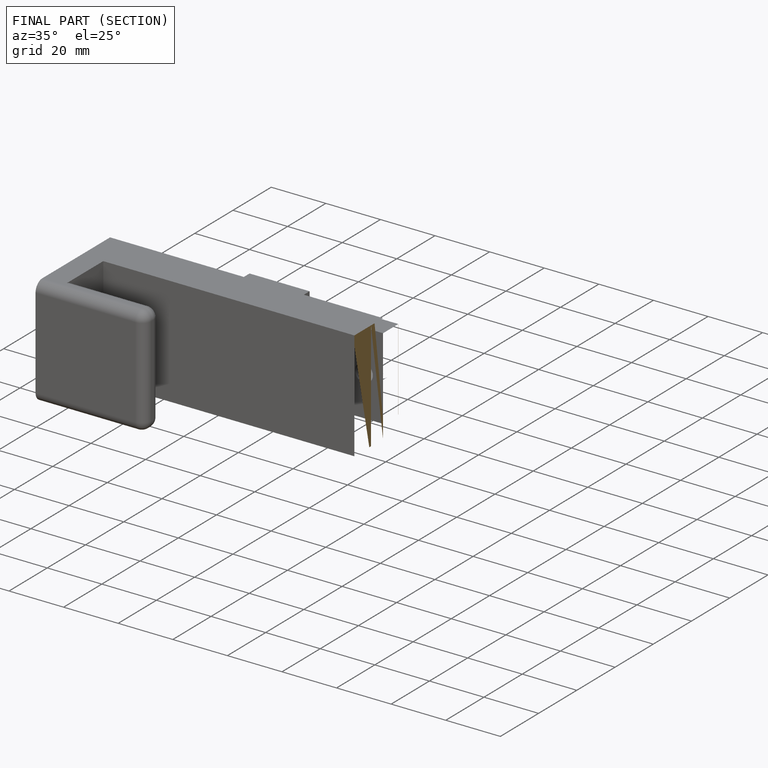
[diagram: finished part — half-section view (interior)]
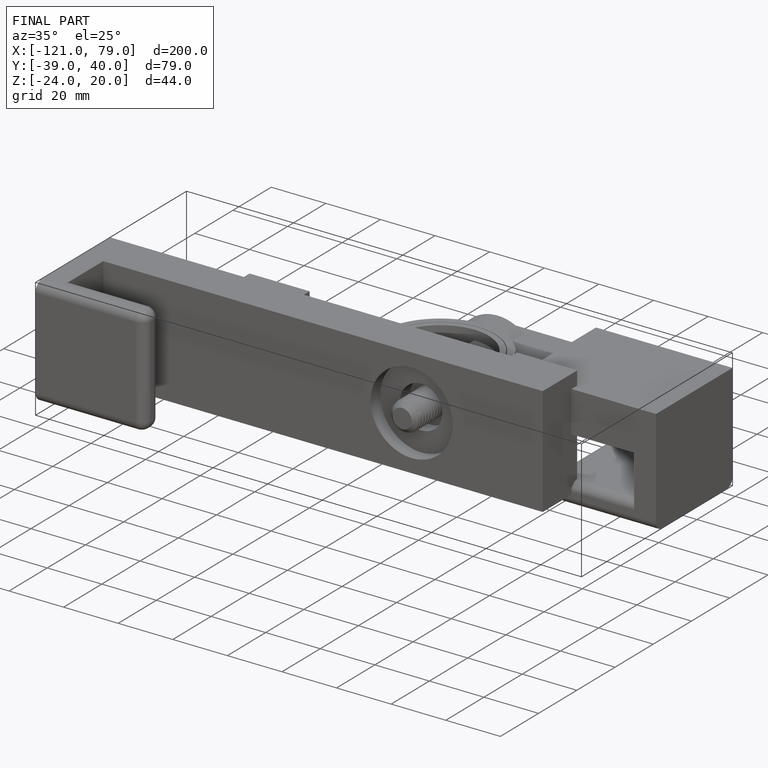
[diagram: finished part — iso view with bounding-box wireframe]
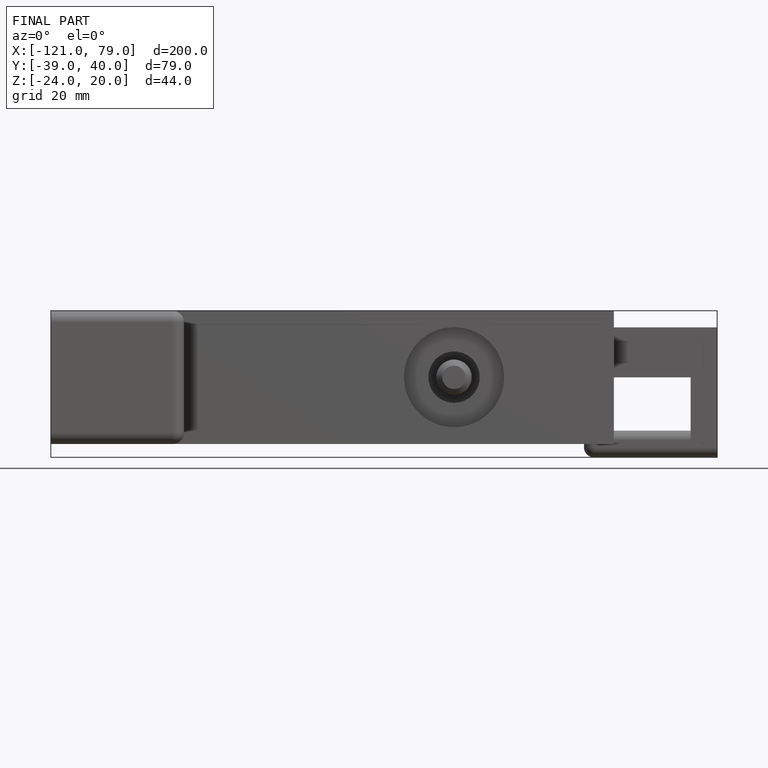
[diagram: finished part — front view with bounding-box wireframe]
